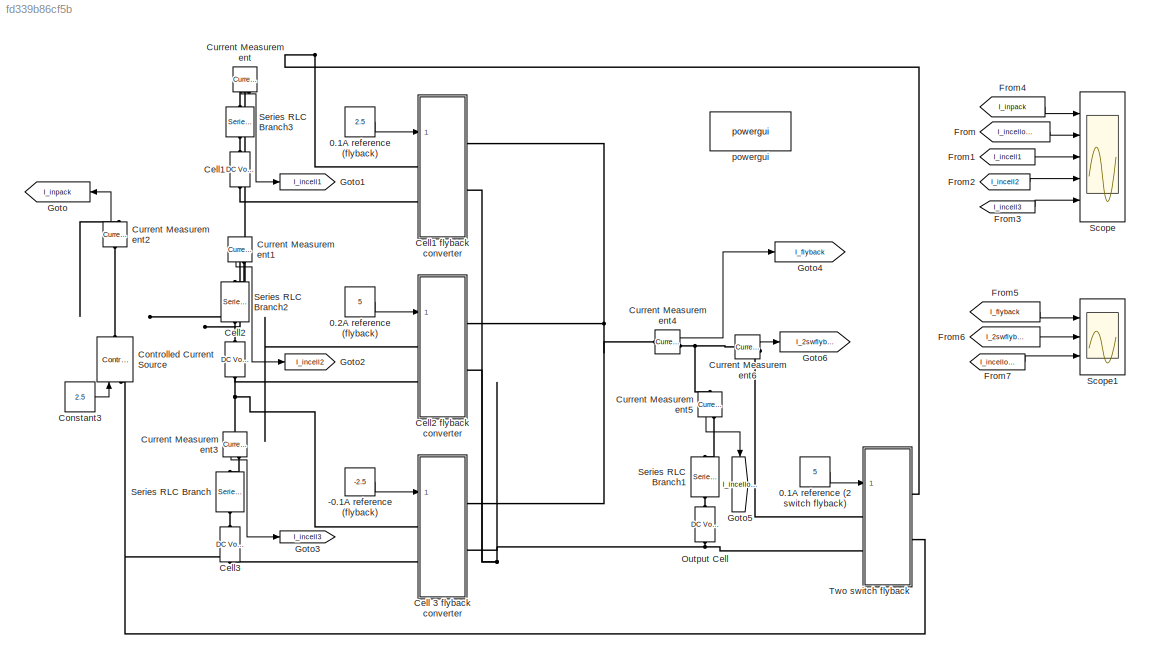
MODEL slx_fd339b86cf5b
KIND model
CONFIG AbsTol = auto
CONFIG EnableMultiTasking = off
CONFIG FixedStep = 5e-10
CONFIG MaxStep = auto
CONFIG MinStep = auto
CONFIG RelTol = 1e-3
CONFIG SampleTimeConstraint = Unconstrained
CONFIG SolverName = ode4
CONFIG StartTime = 0.0
CONFIG StopTime = 2e-3
BLOCK [Constant] -0.1A reference (flyback) 
  Value = -2.5
BLOCK [Constant] 0.1A reference (2 switch flyback)
  Value = 5
BLOCK [Constant] 0.1A reference (flyback)
  Value = 2.5
BLOCK [Constant] 0.2A reference (flyback)
  Value = 5
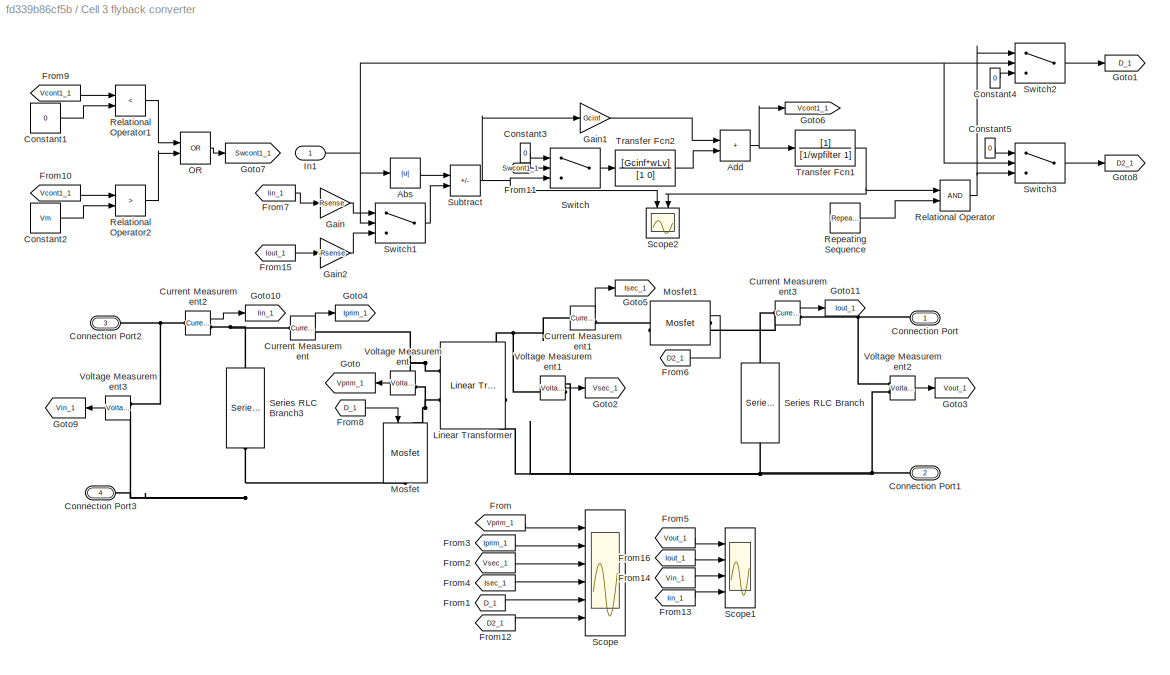
BLOCK [SubSystem] Cell 3 flyback converter
  Ports = [1, 0, 0, 0, 0, 2, 2]
  RequestExecContextInheritance = off
BLOCK [Abs] Cell 3 flyback converter/Abs
  SaturateOnIntegerOverflow = off
BLOCK [Sum] Cell 3 flyback converter/Add
  IconShape = rectangular
  Ports = [2, 1]
BLOCK [PMIOPort] Cell 3 flyback converter/Connection Port
  NameLocation = top
  Side = Right
BLOCK [PMIOPort] Cell 3 flyback converter/Connection Port1
  NameLocation = top
  Port = 2
  Side = Right
BLOCK [PMIOPort] Cell 3 flyback converter/Connection Port2
  Port = 3
  Side = Left
BLOCK [PMIOPort] Cell 3 flyback converter/Connection Port3
  Port = 4
  Side = Left
BLOCK [Constant] Cell 3 flyback converter/Constant1
  Value = 0
BLOCK [Constant] Cell 3 flyback converter/Constant2
  Value = Vm
BLOCK [Constant] Cell 3 flyback converter/Constant3
  Value = 0
BLOCK [Constant] Cell 3 flyback converter/Constant4
  Value = 0
BLOCK [Constant] Cell 3 flyback converter/Constant5
  Value = 0
BLOCK [Reference] Cell 3 flyback converter/Current Measurement  REF=spsCurrentMeasurementLib/Current Measurement
  Ports = [0, 1, 0, 0, 0, 1, 1]
  SourceBlock = spsCurrentMeasurementLib/Current Measurement
  SourceProductBaseCode = PS
  SourceType = Current Measurement
  UserDataPersistent = on
BLOCK [Reference] Cell 3 flyback converter/Current Measurement1  REF=spsCurrentMeasurementLib/Current Measurement
  Ports = [0, 1, 0, 0, 0, 1, 1]
  SourceBlock = spsCurrentMeasurementLib/Current Measurement
  SourceProductBaseCode = PS
  SourceType = Current Measurement
  UserDataPersistent = on
BLOCK [Reference] Cell 3 flyback converter/Current Measurement2  REF=spsCurrentMeasurementLib/Current Measurement
  Ports = [0, 1, 0, 0, 0, 1, 1]
  SourceBlock = spsCurrentMeasurementLib/Current Measurement
  SourceProductBaseCode = PS
  SourceType = Current Measurement
  UserDataPersistent = on
BLOCK [Reference] Cell 3 flyback converter/Current Measurement3  REF=spsCurrentMeasurementLib/Current Measurement
  Ports = [0, 1, 0, 0, 0, 1, 1]
  SourceBlock = spsCurrentMeasurementLib/Current Measurement
  SourceProductBaseCode = PS
  SourceType = Current Measurement
  UserDataPersistent = on
BLOCK [From] Cell 3 flyback converter/From
  GotoTag = Vprim_1
  NameLocation = top
BLOCK [From] Cell 3 flyback converter/From1
  GotoTag = D_1
  NameLocation = top
BLOCK [From] Cell 3 flyback converter/From10
  GotoTag = Vcont1_1
BLOCK [From] Cell 3 flyback converter/From11
  GotoTag = Swcont1_1
BLOCK [From] Cell 3 flyback converter/From12
  GotoTag = D2_1
BLOCK [From] Cell 3 flyback converter/From13
  GotoTag = Iin_1
BLOCK [From] Cell 3 flyback converter/From14
  GotoTag = Vin_1
  NameLocation = top
BLOCK [From] Cell 3 flyback converter/From15
  GotoTag = Iout_1
BLOCK [From] Cell 3 flyback converter/From16
  GotoTag = Iout_1
BLOCK [From] Cell 3 flyback converter/From2
  GotoTag = Vsec_1
BLOCK [From] Cell 3 flyback converter/From3
  GotoTag = Iprim_1
BLOCK [From] Cell 3 flyback converter/From4
  GotoTag = Isec_1
BLOCK [From] Cell 3 flyback converter/From5
  GotoTag = Vout_1
BLOCK [From] Cell 3 flyback converter/From6
  GotoTag = D2_1
  NameLocation = top
BLOCK [From] Cell 3 flyback converter/From7
  GotoTag = Iin_1
BLOCK [From] Cell 3 flyback converter/From8
  GotoTag = D_1
BLOCK [From] Cell 3 flyback converter/From9
  GotoTag = Vcont1_1
BLOCK [Gain] Cell 3 flyback converter/Gain
  Gain = Rsense
BLOCK [Gain] Cell 3 flyback converter/Gain1
  Gain = Gcinf
BLOCK [Gain] Cell 3 flyback converter/Gain2
  Gain = -Rsense
BLOCK [Goto] Cell 3 flyback converter/Goto
  GotoTag = Vprim_1
  NameLocation = top
BLOCK [Goto] Cell 3 flyback converter/Goto1
  GotoTag = D_1
BLOCK [Goto] Cell 3 flyback converter/Goto10
  GotoTag = Iin_1
BLOCK [Goto] Cell 3 flyback converter/Goto11
  GotoTag = Iout_1
BLOCK [Goto] Cell 3 flyback converter/Goto2
  GotoTag = Vsec_1
BLOCK [Goto] Cell 3 flyback converter/Goto3
  GotoTag = Vout_1
BLOCK [Goto] Cell 3 flyback converter/Goto4
  GotoTag = Iprim_1
BLOCK [Goto] Cell 3 flyback converter/Goto5
  GotoTag = Isec_1
BLOCK [Goto] Cell 3 flyback converter/Goto6
  GotoTag = Vcont1_1
BLOCK [Goto] Cell 3 flyback converter/Goto7
  GotoTag = Swcont1_1
BLOCK [Goto] Cell 3 flyback converter/Goto8
  GotoTag = D2_1
BLOCK [Goto] Cell 3 flyback converter/Goto9
  GotoTag = Vin_1
BLOCK [Inport] Cell 3 flyback converter/In1
BLOCK [Reference] Cell 3 flyback converter/Linear Transformer  REF=spsLinearTransformerLib/Linear Transformer
  Ports = [0, 0, 0, 0, 0, 2, 2]
  SourceBlock = spsLinearTransformerLib/Linear Transformer
  SourceProductBaseCode = PS
  SourceType = Linear Transformer
BLOCK [Reference] Cell 3 flyback converter/Mosfet  REF=spsMosfetLib/Mosfet
  NameLocation = left
  Ports = [1, 0, 0, 0, 0, 1, 1]
  SourceBlock = spsMosfetLib/Mosfet
  SourceProductBaseCode = PS
  SourceType = Mosfet
BLOCK [Reference] Cell 3 flyback converter/Mosfet1  REF=spsMosfetLib/Mosfet
  Ports = [1, 0, 0, 0, 0, 1, 1]
  SourceBlock = spsMosfetLib/Mosfet
  SourceProductBaseCode = PS
  SourceType = Mosfet
BLOCK [Logic] Cell 3 flyback converter/OR
  AllPortsSameDT = off
  IconShape = distinctive
  Operator = OR
  OutDataTypeStr = boolean
  Ports = [2, 1]
BLOCK [RelationalOperator] Cell 3 flyback converter/Relational Operator
  InputSameDT = off
  OutDataTypeStr = boolean
  Ports = [2, 1]
  RndMeth = Simplest
BLOCK [RelationalOperator] Cell 3 flyback converter/Relational Operator1
  InputSameDT = off
  Operator = <
  OutDataTypeStr = boolean
  Ports = [2, 1]
  RndMeth = Simplest
BLOCK [RelationalOperator] Cell 3 flyback converter/Relational Operator2
  InputSameDT = off
  Operator = >
  OutDataTypeStr = boolean
  Ports = [2, 1]
  RndMeth = Simplest
BLOCK [Reference] Cell 3 flyback converter/Repeating Sequence  REF=simulink/Sources/Repeating
Sequence
  Ports = [0, 1]
  SourceBlock = simulink/Sources/Repeating\nSequence
  SourceProductBaseCode = SL
  SourceType = Repeating table
BLOCK [Scope] Cell 3 flyback converter/Scope
  Floating = off
  NumInputPorts = 6
  Ports = [6]
  ScopeSpecificationString = Simulink.scopes.TimeScopeBlockCfg('CurrentConfiguration', extmgr.ConfigurationSet(extmgr.Configuration('Core','General UI',true),extmgr.Configuration('Core','Source UI',true),extmgr.Configuration('Sources','WiredSimulink',true,'DataLoggingVariableName','ScopeData1'),extmgr.Configuration('Visuals','Time Domain',true,'SerializedDisplays',{struct('MinYLimReal','-4.68594','MaxYLimReal','4.92895','YLab...<+6452ch>
BLOCK [Scope] Cell 3 flyback converter/Scope1
  Floating = off
  NumInputPorts = 4
  Ports = [4]
  ScopeSpecificationString = Simulink.scopes.TimeScopeBlockCfg('CurrentConfiguration', extmgr.ConfigurationSet(extmgr.Configuration('Core','General UI',true),extmgr.Configuration('Core','Source UI',true),extmgr.Configuration('Sources','WiredSimulink',true,'DataLoggingVariableName','ScopeData2'),extmgr.Configuration('Visuals','Time Domain',true,'SerializedDisplays',{struct('MinYLimReal','3.67749','MaxYLimReal','3.72978','YLabe...<+3683ch>
BLOCK [Scope] Cell 3 flyback converter/Scope2
  Floating = off
  NameLocation = left
  NumInputPorts = 2
  Ports = [2]
  ScopeSpecificationString = Simulink.scopes.TimeScopeBlockCfg('CurrentConfiguration', extmgr.ConfigurationSet(extmgr.Configuration('Core','General UI',true),extmgr.Configuration('Core','Source UI',true),extmgr.Configuration('Sources','WiredSimulink',true),extmgr.Configuration('Visuals','Time Domain',true,'SerializedDisplays',{struct('MinYLimReal','-6.32875','MaxYLimReal','3.77033','YLabelReal','','MinYLimMag','0.00000','MaxY...<+2166ch>
BLOCK [Reference] Cell 3 flyback converter/Series RLC Branch  REF=spsSeriesRLCBranchLib/Series RLC Branch
  NameLocation = left
  Ports = [0, 0, 0, 0, 0, 1, 1]
  SourceBlock = spsSeriesRLCBranchLib/Series RLC Branch
  SourceProductBaseCode = PS
  SourceType = Series RLC Branch
BLOCK [Reference] Cell 3 flyback converter/Series RLC Branch3  REF=spsSeriesRLCBranchLib/Series RLC Branch
  NameLocation = left
  Ports = [0, 0, 0, 0, 0, 1, 1]
  SourceBlock = spsSeriesRLCBranchLib/Series RLC Branch
  SourceProductBaseCode = PS
  SourceType = Series RLC Branch
BLOCK [Sum] Cell 3 flyback converter/Subtract
  IconShape = rectangular
  Inputs = +-
  Ports = [2, 1]
BLOCK [Switch] Cell 3 flyback converter/Switch
  Criteria = u2 > Threshold
  InputSameDT = off
  SaturateOnIntegerOverflow = off
BLOCK [Switch] Cell 3 flyback converter/Switch1
  Criteria = u2 > Threshold
  InputSameDT = off
  SaturateOnIntegerOverflow = off
BLOCK [Switch] Cell 3 flyback converter/Switch2
  Criteria = u2 > Threshold
  InputSameDT = off
  SaturateOnIntegerOverflow = off
BLOCK [Switch] Cell 3 flyback converter/Switch3
  Criteria = u2 > Threshold
  InputSameDT = off
  SaturateOnIntegerOverflow = off
BLOCK [TransferFcn] Cell 3 flyback converter/Transfer Fcn1
  Denominator = [1/wpfilter 1]
BLOCK [TransferFcn] Cell 3 flyback converter/Transfer Fcn2
  Denominator = [1 0]
  Numerator = [Gcinf*wLv]
BLOCK [Reference] Cell 3 flyback converter/Voltage Measurement  REF=spsVoltageMeasurementLib/Voltage Measurement
  Ports = [0, 1, 0, 0, 0, 2]
  SourceBlock = spsVoltageMeasurementLib/Voltage Measurement
  SourceProductBaseCode = PS
  SourceType = Voltage Measurement
  UserDataPersistent = on
BLOCK [Reference] Cell 3 flyback converter/Voltage Measurement1  REF=spsVoltageMeasurementLib/Voltage Measurement
  NameLocation = top
  Ports = [0, 1, 0, 0, 0, 2]
  SourceBlock = spsVoltageMeasurementLib/Voltage Measurement
  SourceProductBaseCode = PS
  SourceType = Voltage Measurement
  UserDataPersistent = on
BLOCK [Reference] Cell 3 flyback converter/Voltage Measurement2  REF=spsVoltageMeasurementLib/Voltage Measurement
  Ports = [0, 1, 0, 0, 0, 2]
  SourceBlock = spsVoltageMeasurementLib/Voltage Measurement
  SourceProductBaseCode = PS
  SourceType = Voltage Measurement
  UserDataPersistent = on
BLOCK [Reference] Cell 3 flyback converter/Voltage Measurement3  REF=spsVoltageMeasurementLib/Voltage Measurement
  Ports = [0, 1, 0, 0, 0, 2]
  SourceBlock = spsVoltageMeasurementLib/Voltage Measurement
  SourceProductBaseCode = PS
  SourceType = Voltage Measurement
  UserDataPersistent = on
BLOCK [Reference] Cell1  REF=spsDCVoltageSourceLib/DC Voltage Source
  NameLocation = left
  Ports = [0, 0, 0, 0, 0, 1, 1]
  SourceBlock = spsDCVoltageSourceLib/DC Voltage Source
  SourceProductBaseCode = PS
  SourceType = DC Voltage Source
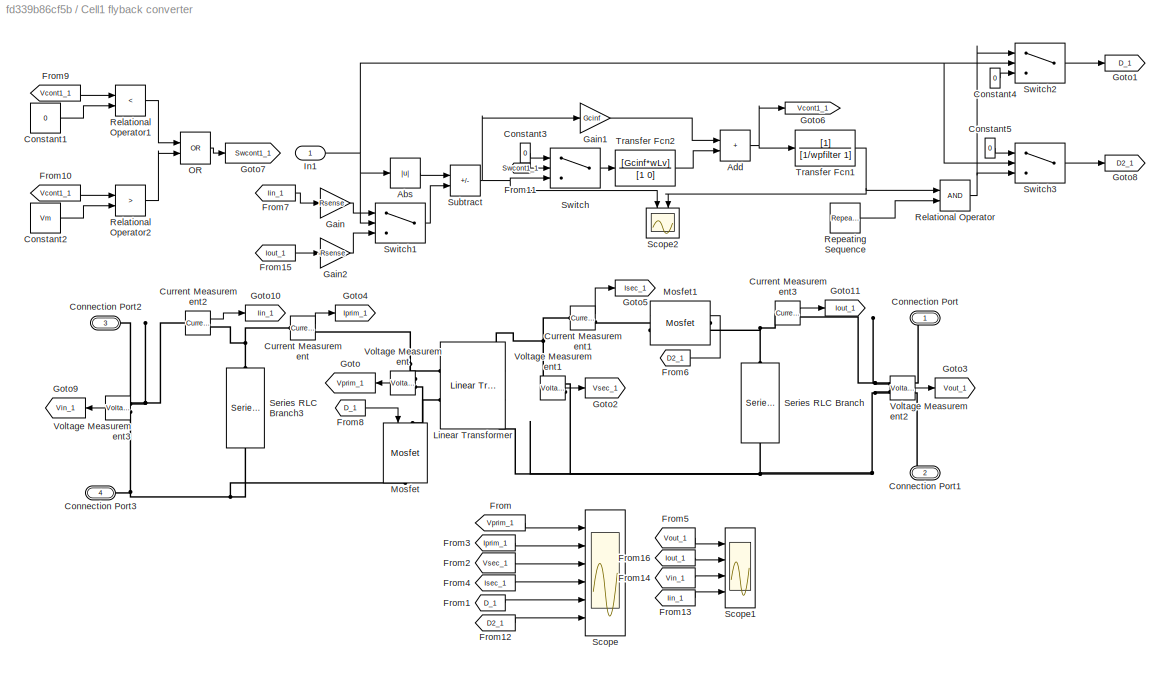
BLOCK [SubSystem] Cell1 flyback converter
  Ports = [1, 0, 0, 0, 0, 2, 2]
  RequestExecContextInheritance = off
BLOCK [Abs] Cell1 flyback converter/Abs
  SaturateOnIntegerOverflow = off
BLOCK [Sum] Cell1 flyback converter/Add
  IconShape = rectangular
  Ports = [2, 1]
BLOCK [PMIOPort] Cell1 flyback converter/Connection Port
  NameLocation = top
  Side = Right
BLOCK [PMIOPort] Cell1 flyback converter/Connection Port1
  NameLocation = top
  Port = 2
  Side = Right
BLOCK [PMIOPort] Cell1 flyback converter/Connection Port2
  Port = 3
  Side = Left
BLOCK [PMIOPort] Cell1 flyback converter/Connection Port3
  Port = 4
  Side = Left
BLOCK [Constant] Cell1 flyback converter/Constant1
  Value = 0
BLOCK [Constant] Cell1 flyback converter/Constant2
  Value = Vm
BLOCK [Constant] Cell1 flyback converter/Constant3
  Value = 0
BLOCK [Constant] Cell1 flyback converter/Constant4
  Value = 0
BLOCK [Constant] Cell1 flyback converter/Constant5
  Value = 0
BLOCK [Reference] Cell1 flyback converter/Current Measurement  REF=spsCurrentMeasurementLib/Current Measurement
  Ports = [0, 1, 0, 0, 0, 1, 1]
  SourceBlock = spsCurrentMeasurementLib/Current Measurement
  SourceProductBaseCode = PS
  SourceType = Current Measurement
  UserDataPersistent = on
BLOCK [Reference] Cell1 flyback converter/Current Measurement1  REF=spsCurrentMeasurementLib/Current Measurement
  Ports = [0, 1, 0, 0, 0, 1, 1]
  SourceBlock = spsCurrentMeasurementLib/Current Measurement
  SourceProductBaseCode = PS
  SourceType = Current Measurement
  UserDataPersistent = on
BLOCK [Reference] Cell1 flyback converter/Current Measurement2  REF=spsCurrentMeasurementLib/Current Measurement
  Ports = [0, 1, 0, 0, 0, 1, 1]
  SourceBlock = spsCurrentMeasurementLib/Current Measurement
  SourceProductBaseCode = PS
  SourceType = Current Measurement
  UserDataPersistent = on
BLOCK [Reference] Cell1 flyback converter/Current Measurement3  REF=spsCurrentMeasurementLib/Current Measurement
  Ports = [0, 1, 0, 0, 0, 1, 1]
  SourceBlock = spsCurrentMeasurementLib/Current Measurement
  SourceProductBaseCode = PS
  SourceType = Current Measurement
  UserDataPersistent = on
BLOCK [From] Cell1 flyback converter/From
  GotoTag = Vprim_1
  NameLocation = top
BLOCK [From] Cell1 flyback converter/From1
  GotoTag = D_1
  NameLocation = top
BLOCK [From] Cell1 flyback converter/From10
  GotoTag = Vcont1_1
BLOCK [From] Cell1 flyback converter/From11
  GotoTag = Swcont1_1
BLOCK [From] Cell1 flyback converter/From12
  GotoTag = D2_1
BLOCK [From] Cell1 flyback converter/From13
  GotoTag = Iin_1
BLOCK [From] Cell1 flyback converter/From14
  GotoTag = Vin_1
  NameLocation = top
BLOCK [From] Cell1 flyback converter/From15
  GotoTag = Iout_1
BLOCK [From] Cell1 flyback converter/From16
  GotoTag = Iout_1
BLOCK [From] Cell1 flyback converter/From2
  GotoTag = Vsec_1
BLOCK [From] Cell1 flyback converter/From3
  GotoTag = Iprim_1
BLOCK [From] Cell1 flyback converter/From4
  GotoTag = Isec_1
BLOCK [From] Cell1 flyback converter/From5
  GotoTag = Vout_1
BLOCK [From] Cell1 flyback converter/From6
  GotoTag = D2_1
  NameLocation = top
BLOCK [From] Cell1 flyback converter/From7
  GotoTag = Iin_1
BLOCK [From] Cell1 flyback converter/From8
  GotoTag = D_1
BLOCK [From] Cell1 flyback converter/From9
  GotoTag = Vcont1_1
BLOCK [Gain] Cell1 flyback converter/Gain
  Gain = Rsense
BLOCK [Gain] Cell1 flyback converter/Gain1
  Gain = Gcinf
BLOCK [Gain] Cell1 flyback converter/Gain2
  Gain = -Rsense
BLOCK [Goto] Cell1 flyback converter/Goto
  GotoTag = Vprim_1
  NameLocation = top
BLOCK [Goto] Cell1 flyback converter/Goto1
  GotoTag = D_1
BLOCK [Goto] Cell1 flyback converter/Goto10
  GotoTag = Iin_1
BLOCK [Goto] Cell1 flyback converter/Goto11
  GotoTag = Iout_1
BLOCK [Goto] Cell1 flyback converter/Goto2
  GotoTag = Vsec_1
BLOCK [Goto] Cell1 flyback converter/Goto3
  GotoTag = Vout_1
BLOCK [Goto] Cell1 flyback converter/Goto4
  GotoTag = Iprim_1
BLOCK [Goto] Cell1 flyback converter/Goto5
  GotoTag = Isec_1
BLOCK [Goto] Cell1 flyback converter/Goto6
  GotoTag = Vcont1_1
BLOCK [Goto] Cell1 flyback converter/Goto7
  GotoTag = Swcont1_1
BLOCK [Goto] Cell1 flyback converter/Goto8
  GotoTag = D2_1
BLOCK [Goto] Cell1 flyback converter/Goto9
  GotoTag = Vin_1
BLOCK [Inport] Cell1 flyback converter/In1
BLOCK [Reference] Cell1 flyback converter/Linear Transformer  REF=spsLinearTransformerLib/Linear Transformer
  Ports = [0, 0, 0, 0, 0, 2, 2]
  SourceBlock = spsLinearTransformerLib/Linear Transformer
  SourceProductBaseCode = PS
  SourceType = Linear Transformer
BLOCK [Reference] Cell1 flyback converter/Mosfet  REF=spsMosfetLib/Mosfet
  NameLocation = left
  Ports = [1, 0, 0, 0, 0, 1, 1]
  SourceBlock = spsMosfetLib/Mosfet
  SourceProductBaseCode = PS
  SourceType = Mosfet
BLOCK [Reference] Cell1 flyback converter/Mosfet1  REF=spsMosfetLib/Mosfet
  Ports = [1, 0, 0, 0, 0, 1, 1]
  SourceBlock = spsMosfetLib/Mosfet
  SourceProductBaseCode = PS
  SourceType = Mosfet
BLOCK [Logic] Cell1 flyback converter/OR
  AllPortsSameDT = off
  IconShape = distinctive
  Operator = OR
  OutDataTypeStr = boolean
  Ports = [2, 1]
BLOCK [RelationalOperator] Cell1 flyback converter/Relational Operator
  InputSameDT = off
  OutDataTypeStr = boolean
  Ports = [2, 1]
  RndMeth = Simplest
BLOCK [RelationalOperator] Cell1 flyback converter/Relational Operator1
  InputSameDT = off
  Operator = <
  OutDataTypeStr = boolean
  Ports = [2, 1]
  RndMeth = Simplest
BLOCK [RelationalOperator] Cell1 flyback converter/Relational Operator2
  InputSameDT = off
  Operator = >
  OutDataTypeStr = boolean
  Ports = [2, 1]
  RndMeth = Simplest
BLOCK [Reference] Cell1 flyback converter/Repeating Sequence  REF=simulink/Sources/Repeating
Sequence
  Ports = [0, 1]
  SourceBlock = simulink/Sources/Repeating\nSequence
  SourceProductBaseCode = SL
  SourceType = Repeating table
BLOCK [Scope] Cell1 flyback converter/Scope
  Floating = off
  NumInputPorts = 6
  Ports = [6]
  ScopeSpecificationString = Simulink.scopes.TimeScopeBlockCfg('CurrentConfiguration', extmgr.ConfigurationSet(extmgr.Configuration('Core','General UI',true),extmgr.Configuration('Core','Source UI',true),extmgr.Configuration('Sources','WiredSimulink',true,'DataLoggingVariableName','ScopeData1'),extmgr.Configuration('Visuals','Time Domain',true,'SerializedDisplays',{struct('MinYLimReal','-4.70297','MaxYLimReal','4.91144','YLab...<+6452ch>
BLOCK [Scope] Cell1 flyback converter/Scope1
  Floating = off
  NumInputPorts = 4
  Ports = [4]
  ScopeSpecificationString = Simulink.scopes.TimeScopeBlockCfg('CurrentConfiguration', extmgr.ConfigurationSet(extmgr.Configuration('Core','General UI',true),extmgr.Configuration('Core','Source UI',true),extmgr.Configuration('Sources','WiredSimulink',true,'DataLoggingVariableName','ScopeData2'),extmgr.Configuration('Visuals','Time Domain',true,'SerializedDisplays',{struct('MinYLimReal','3.67751','MaxYLimReal','3.72962','YLabe...<+3711ch>
BLOCK [Scope] Cell1 flyback converter/Scope2
  Floating = off
  NameLocation = left
  NumInputPorts = 2
  Ports = [2]
  ScopeSpecificationString = Simulink.scopes.TimeScopeBlockCfg('CurrentConfiguration', extmgr.ConfigurationSet(extmgr.Configuration('Core','General UI',true),extmgr.Configuration('Core','Source UI',true),extmgr.Configuration('Sources','WiredSimulink',true),extmgr.Configuration('Visuals','Time Domain',true,'SerializedDisplays',{struct('MinYLimReal','-2.39387','MaxYLimReal','3.07102','YLabelReal','','MinYLimMag','0.00000','MaxY...<+2166ch>
BLOCK [Reference] Cell1 flyback converter/Series RLC Branch  REF=spsSeriesRLCBranchLib/Series RLC Branch
  NameLocation = left
  Ports = [0, 0, 0, 0, 0, 1, 1]
  SourceBlock = spsSeriesRLCBranchLib/Series RLC Branch
  SourceProductBaseCode = PS
  SourceType = Series RLC Branch
BLOCK [Reference] Cell1 flyback converter/Series RLC Branch3  REF=spsSeriesRLCBranchLib/Series RLC Branch
  NameLocation = left
  Ports = [0, 0, 0, 0, 0, 1, 1]
  SourceBlock = spsSeriesRLCBranchLib/Series RLC Branch
  SourceProductBaseCode = PS
  SourceType = Series RLC Branch
BLOCK [Sum] Cell1 flyback converter/Subtract
  IconShape = rectangular
  Inputs = +-
  Ports = [2, 1]
BLOCK [Switch] Cell1 flyback converter/Switch
  Criteria = u2 > Threshold
  InputSameDT = off
  SaturateOnIntegerOverflow = off
BLOCK [Switch] Cell1 flyback converter/Switch1
  Criteria = u2 > Threshold
  InputSameDT = off
  SaturateOnIntegerOverflow = off
BLOCK [Switch] Cell1 flyback converter/Switch2
  Criteria = u2 > Threshold
  InputSameDT = off
  SaturateOnIntegerOverflow = off
BLOCK [Switch] Cell1 flyback converter/Switch3
  Criteria = u2 > Threshold
  InputSameDT = off
  SaturateOnIntegerOverflow = off
BLOCK [TransferFcn] Cell1 flyback converter/Transfer Fcn1
  Denominator = [1/wpfilter 1]
BLOCK [TransferFcn] Cell1 flyback converter/Transfer Fcn2
  Denominator = [1 0]
  Numerator = [Gcinf*wLv]
BLOCK [Reference] Cell1 flyback converter/Voltage Measurement  REF=spsVoltageMeasurementLib/Voltage Measurement
  Ports = [0, 1, 0, 0, 0, 2]
  SourceBlock = spsVoltageMeasurementLib/Voltage Measurement
  SourceProductBaseCode = PS
  SourceType = Voltage Measurement
  UserDataPersistent = on
BLOCK [Reference] Cell1 flyback converter/Voltage Measurement1  REF=spsVoltageMeasurementLib/Voltage Measurement
  NameLocation = top
  Ports = [0, 1, 0, 0, 0, 2]
  SourceBlock = spsVoltageMeasurementLib/Voltage Measurement
  SourceProductBaseCode = PS
  SourceType = Voltage Measurement
  UserDataPersistent = on
BLOCK [Reference] Cell1 flyback converter/Voltage Measurement2  REF=spsVoltageMeasurementLib/Voltage Measurement
  Ports = [0, 1, 0, 0, 0, 2]
  SourceBlock = spsVoltageMeasurementLib/Voltage Measurement
  SourceProductBaseCode = PS
  SourceType = Voltage Measurement
  UserDataPersistent = on
BLOCK [Reference] Cell1 flyback converter/Voltage Measurement3  REF=spsVoltageMeasurementLib/Voltage Measurement
  Ports = [0, 1, 0, 0, 0, 2]
  SourceBlock = spsVoltageMeasurementLib/Voltage Measurement
  SourceProductBaseCode = PS
  SourceType = Voltage Measurement
  UserDataPersistent = on
BLOCK [Reference] Cell2  REF=spsDCVoltageSourceLib/DC Voltage Source
  NameLocation = left
  Ports = [0, 0, 0, 0, 0, 1, 1]
  SourceBlock = spsDCVoltageSourceLib/DC Voltage Source
  SourceProductBaseCode = PS
  SourceType = DC Voltage Source
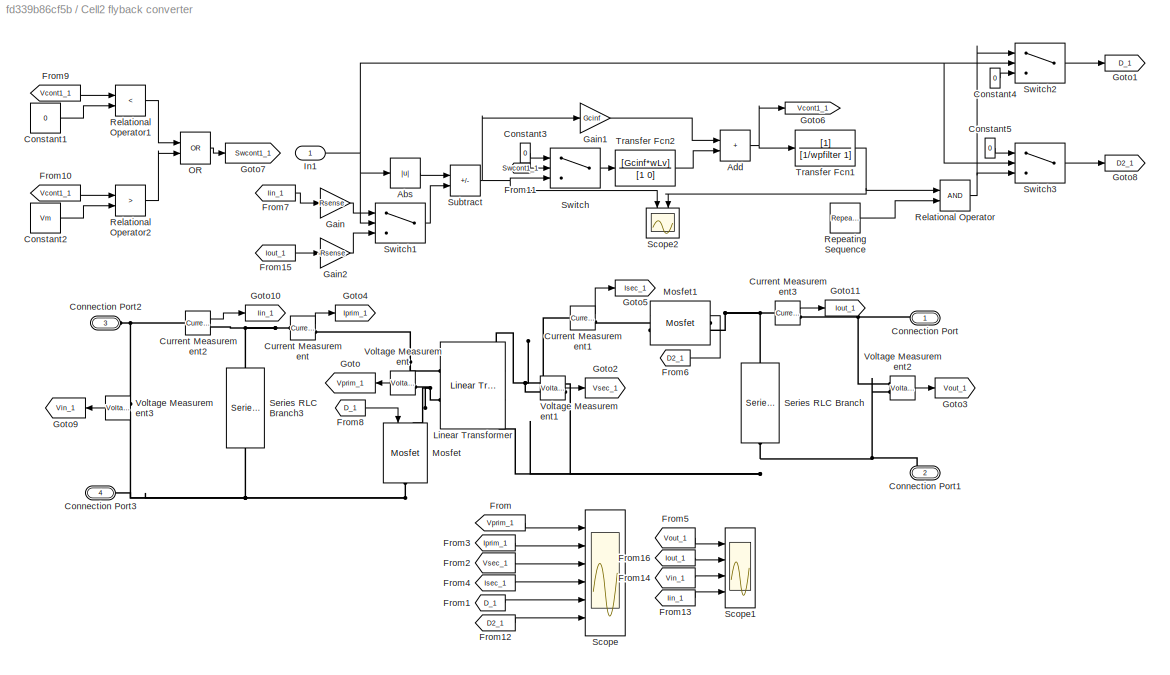
BLOCK [SubSystem] Cell2 flyback converter
  Ports = [1, 0, 0, 0, 0, 2, 2]
  RequestExecContextInheritance = off
BLOCK [Abs] Cell2 flyback converter/Abs
  SaturateOnIntegerOverflow = off
BLOCK [Sum] Cell2 flyback converter/Add
  IconShape = rectangular
  Ports = [2, 1]
BLOCK [PMIOPort] Cell2 flyback converter/Connection Port
  NameLocation = top
  Side = Right
BLOCK [PMIOPort] Cell2 flyback converter/Connection Port1
  NameLocation = top
  Port = 2
  Side = Right
BLOCK [PMIOPort] Cell2 flyback converter/Connection Port2
  Port = 3
  Side = Left
BLOCK [PMIOPort] Cell2 flyback converter/Connection Port3
  Port = 4
  Side = Left
BLOCK [Constant] Cell2 flyback converter/Constant1
  Value = 0
BLOCK [Constant] Cell2 flyback converter/Constant2
  Value = Vm
BLOCK [Constant] Cell2 flyback converter/Constant3
  Value = 0
BLOCK [Constant] Cell2 flyback converter/Constant4
  Value = 0
BLOCK [Constant] Cell2 flyback converter/Constant5
  Value = 0
BLOCK [Reference] Cell2 flyback converter/Current Measurement  REF=spsCurrentMeasurementLib/Current Measurement
  Ports = [0, 1, 0, 0, 0, 1, 1]
  SourceBlock = spsCurrentMeasurementLib/Current Measurement
  SourceProductBaseCode = PS
  SourceType = Current Measurement
  UserDataPersistent = on
BLOCK [Reference] Cell2 flyback converter/Current Measurement1  REF=spsCurrentMeasurementLib/Current Measurement
  Ports = [0, 1, 0, 0, 0, 1, 1]
  SourceBlock = spsCurrentMeasurementLib/Current Measurement
  SourceProductBaseCode = PS
  SourceType = Current Measurement
  UserDataPersistent = on
BLOCK [Reference] Cell2 flyback converter/Current Measurement2  REF=spsCurrentMeasurementLib/Current Measurement
  Ports = [0, 1, 0, 0, 0, 1, 1]
  SourceBlock = spsCurrentMeasurementLib/Current Measurement
  SourceProductBaseCode = PS
  SourceType = Current Measurement
  UserDataPersistent = on
BLOCK [Reference] Cell2 flyback converter/Current Measurement3  REF=spsCurrentMeasurementLib/Current Measurement
  Ports = [0, 1, 0, 0, 0, 1, 1]
  SourceBlock = spsCurrentMeasurementLib/Current Measurement
  SourceProductBaseCode = PS
  SourceType = Current Measurement
  UserDataPersistent = on
BLOCK [From] Cell2 flyback converter/From
  GotoTag = Vprim_1
  NameLocation = top
BLOCK [From] Cell2 flyback converter/From1
  GotoTag = D_1
  NameLocation = top
BLOCK [From] Cell2 flyback converter/From10
  GotoTag = Vcont1_1
BLOCK [From] Cell2 flyback converter/From11
  GotoTag = Swcont1_1
BLOCK [From] Cell2 flyback converter/From12
  GotoTag = D2_1
BLOCK [From] Cell2 flyback converter/From13
  GotoTag = Iin_1
BLOCK [From] Cell2 flyback converter/From14
  GotoTag = Vin_1
  NameLocation = top
BLOCK [From] Cell2 flyback converter/From15
  GotoTag = Iout_1
BLOCK [From] Cell2 flyback converter/From16
  GotoTag = Iout_1
BLOCK [From] Cell2 flyback converter/From2
  GotoTag = Vsec_1
BLOCK [From] Cell2 flyback converter/From3
  GotoTag = Iprim_1
BLOCK [From] Cell2 flyback converter/From4
  GotoTag = Isec_1
BLOCK [From] Cell2 flyback converter/From5
  GotoTag = Vout_1
BLOCK [From] Cell2 flyback converter/From6
  GotoTag = D2_1
  NameLocation = top
BLOCK [From] Cell2 flyback converter/From7
  GotoTag = Iin_1
BLOCK [From] Cell2 flyback converter/From8
  GotoTag = D_1
BLOCK [From] Cell2 flyback converter/From9
  GotoTag = Vcont1_1
BLOCK [Gain] Cell2 flyback converter/Gain
  Gain = Rsense
BLOCK [Gain] Cell2 flyback converter/Gain1
  Gain = Gcinf
BLOCK [Gain] Cell2 flyback converter/Gain2
  Gain = -Rsense
BLOCK [Goto] Cell2 flyback converter/Goto
  GotoTag = Vprim_1
  NameLocation = top
BLOCK [Goto] Cell2 flyback converter/Goto1
  GotoTag = D_1
BLOCK [Goto] Cell2 flyback converter/Goto10
  GotoTag = Iin_1
BLOCK [Goto] Cell2 flyback converter/Goto11
  GotoTag = Iout_1
BLOCK [Goto] Cell2 flyback converter/Goto2
  GotoTag = Vsec_1
BLOCK [Goto] Cell2 flyback converter/Goto3
  GotoTag = Vout_1
BLOCK [Goto] Cell2 flyback converter/Goto4
  GotoTag = Iprim_1
BLOCK [Goto] Cell2 flyback converter/Goto5
  GotoTag = Isec_1
BLOCK [Goto] Cell2 flyback converter/Goto6
  GotoTag = Vcont1_1
BLOCK [Goto] Cell2 flyback converter/Goto7
  GotoTag = Swcont1_1
BLOCK [Goto] Cell2 flyback converter/Goto8
  GotoTag = D2_1
BLOCK [Goto] Cell2 flyback converter/Goto9
  GotoTag = Vin_1
BLOCK [Inport] Cell2 flyback converter/In1
BLOCK [Reference] Cell2 flyback converter/Linear Transformer  REF=spsLinearTransformerLib/Linear Transformer
  Ports = [0, 0, 0, 0, 0, 2, 2]
  SourceBlock = spsLinearTransformerLib/Linear Transformer
  SourceProductBaseCode = PS
  SourceType = Linear Transformer
BLOCK [Reference] Cell2 flyback converter/Mosfet  REF=spsMosfetLib/Mosfet
  NameLocation = left
  Ports = [1, 0, 0, 0, 0, 1, 1]
  SourceBlock = spsMosfetLib/Mosfet
  SourceProductBaseCode = PS
  SourceType = Mosfet
BLOCK [Reference] Cell2 flyback converter/Mosfet1  REF=spsMosfetLib/Mosfet
  Ports = [1, 0, 0, 0, 0, 1, 1]
  SourceBlock = spsMosfetLib/Mosfet
  SourceProductBaseCode = PS
  SourceType = Mosfet
BLOCK [Logic] Cell2 flyback converter/OR
  AllPortsSameDT = off
  IconShape = distinctive
  Operator = OR
  OutDataTypeStr = boolean
  Ports = [2, 1]
BLOCK [RelationalOperator] Cell2 flyback converter/Relational Operator
  InputSameDT = off
  OutDataTypeStr = boolean
  Ports = [2, 1]
  RndMeth = Simplest
BLOCK [RelationalOperator] Cell2 flyback converter/Relational Operator1
  InputSameDT = off
  Operator = <
  OutDataTypeStr = boolean
  Ports = [2, 1]
  RndMeth = Simplest
BLOCK [RelationalOperator] Cell2 flyback converter/Relational Operator2
  InputSameDT = off
  Operator = >
  OutDataTypeStr = boolean
  Ports = [2, 1]
  RndMeth = Simplest
BLOCK [Reference] Cell2 flyback converter/Repeating Sequence  REF=simulink/Sources/Repeating
Sequence
  Ports = [0, 1]
  SourceBlock = simulink/Sources/Repeating\nSequence
  SourceProductBaseCode = SL
  SourceType = Repeating table
BLOCK [Scope] Cell2 flyback converter/Scope
  Floating = off
  NumInputPorts = 6
  Ports = [6]
  ScopeSpecificationString = Simulink.scopes.TimeScopeBlockCfg('CurrentConfiguration', extmgr.ConfigurationSet(extmgr.Configuration('Core','General UI',true),extmgr.Configuration('Core','Source UI',true),extmgr.Configuration('Sources','WiredSimulink',true,'DataLoggingVariableName','ScopeData1'),extmgr.Configuration('Visuals','Time Domain',true,'SerializedDisplays',{struct('MinYLimReal','-4.7032','MaxYLimReal','4.91147','YLabe...<+6451ch>
BLOCK [Scope] Cell2 flyback converter/Scope1
  Floating = off
  NumInputPorts = 4
  Ports = [4]
  ScopeSpecificationString = Simulink.scopes.TimeScopeBlockCfg('CurrentConfiguration', extmgr.ConfigurationSet(extmgr.Configuration('Core','General UI',true),extmgr.Configuration('Core','Source UI',true),extmgr.Configuration('Sources','WiredSimulink',true,'DataLoggingVariableName','ScopeData2'),extmgr.Configuration('Visuals','Time Domain',true,'SerializedDisplays',{struct('MinYLimReal','3.68057','MaxYLimReal','3.74808','YLabe...<+3708ch>
BLOCK [Scope] Cell2 flyback converter/Scope2
  Floating = off
  NameLocation = left
  NumInputPorts = 2
  Ports = [2]
  ScopeSpecificationString = Simulink.scopes.TimeScopeBlockCfg('CurrentConfiguration', extmgr.ConfigurationSet(extmgr.Configuration('Core','General UI',true),extmgr.Configuration('Core','Source UI',true),extmgr.Configuration('Sources','WiredSimulink',true),extmgr.Configuration('Visuals','Time Domain',true,'SerializedDisplays',{struct('MinYLimReal','-4.74142','MaxYLimReal','6.08239','YLabelReal','','MinYLimMag','0.00000','MaxY...<+2165ch>
BLOCK [Reference] Cell2 flyback converter/Series RLC Branch  REF=spsSeriesRLCBranchLib/Series RLC Branch
  NameLocation = left
  Ports = [0, 0, 0, 0, 0, 1, 1]
  SourceBlock = spsSeriesRLCBranchLib/Series RLC Branch
  SourceProductBaseCode = PS
  SourceType = Series RLC Branch
BLOCK [Reference] Cell2 flyback converter/Series RLC Branch3  REF=spsSeriesRLCBranchLib/Series RLC Branch
  NameLocation = left
  Ports = [0, 0, 0, 0, 0, 1, 1]
  SourceBlock = spsSeriesRLCBranchLib/Series RLC Branch
  SourceProductBaseCode = PS
  SourceType = Series RLC Branch
BLOCK [Sum] Cell2 flyback converter/Subtract
  IconShape = rectangular
  Inputs = +-
  Ports = [2, 1]
BLOCK [Switch] Cell2 flyback converter/Switch
  Criteria = u2 > Threshold
  InputSameDT = off
  SaturateOnIntegerOverflow = off
BLOCK [Switch] Cell2 flyback converter/Switch1
  Criteria = u2 > Threshold
  InputSameDT = off
  SaturateOnIntegerOverflow = off
BLOCK [Switch] Cell2 flyback converter/Switch2
  Criteria = u2 > Threshold
  InputSameDT = off
  SaturateOnIntegerOverflow = off
BLOCK [Switch] Cell2 flyback converter/Switch3
  Criteria = u2 > Threshold
  InputSameDT = off
  SaturateOnIntegerOverflow = off
BLOCK [TransferFcn] Cell2 flyback converter/Transfer Fcn1
  Denominator = [1/wpfilter 1]
BLOCK [TransferFcn] Cell2 flyback converter/Transfer Fcn2
  Denominator = [1 0]
  Numerator = [Gcinf*wLv]
BLOCK [Reference] Cell2 flyback converter/Voltage Measurement  REF=spsVoltageMeasurementLib/Voltage Measurement
  Ports = [0, 1, 0, 0, 0, 2]
  SourceBlock = spsVoltageMeasurementLib/Voltage Measurement
  SourceProductBaseCode = PS
  SourceType = Voltage Measurement
  UserDataPersistent = on
BLOCK [Reference] Cell2 flyback converter/Voltage Measurement1  REF=spsVoltageMeasurementLib/Voltage Measurement
  NameLocation = top
  Ports = [0, 1, 0, 0, 0, 2]
  SourceBlock = spsVoltageMeasurementLib/Voltage Measurement
  SourceProductBaseCode = PS
  SourceType = Voltage Measurement
  UserDataPersistent = on
BLOCK [Reference] Cell2 flyback converter/Voltage Measurement2  REF=spsVoltageMeasurementLib/Voltage Measurement
  Ports = [0, 1, 0, 0, 0, 2]
  SourceBlock = spsVoltageMeasurementLib/Voltage Measurement
  SourceProductBaseCode = PS
  SourceType = Voltage Measurement
  UserDataPersistent = on
BLOCK [Reference] Cell2 flyback converter/Voltage Measurement3  REF=spsVoltageMeasurementLib/Voltage Measurement
  Ports = [0, 1, 0, 0, 0, 2]
  SourceBlock = spsVoltageMeasurementLib/Voltage Measurement
  SourceProductBaseCode = PS
  SourceType = Voltage Measurement
  UserDataPersistent = on
BLOCK [Reference] Cell3  REF=spsDCVoltageSourceLib/DC Voltage Source
  NameLocation = left
  Ports = [0, 0, 0, 0, 0, 1, 1]
  SourceBlock = spsDCVoltageSourceLib/DC Voltage Source
  SourceProductBaseCode = PS
  SourceType = DC Voltage Source
BLOCK [Constant] Constant3
  Value = 2.5
BLOCK [Reference] Controlled Current Source  REF=spsControlledCurrentSourceLib/Controlled Current Source
  Ports = [1, 0, 0, 0, 0, 1, 1]
  SourceBlock = spsControlledCurrentSourceLib/Controlled Current Source
  SourceProductBaseCode = PS
  SourceType = Controlled Current Source
BLOCK [Reference] Current Measurement  REF=spsCurrentMeasurementLib/Current Measurement
  NameLocation = left
  Ports = [0, 1, 0, 0, 0, 1, 1]
  SourceBlock = spsCurrentMeasurementLib/Current Measurement
  SourceProductBaseCode = PS
  SourceType = Current Measurement
  UserDataPersistent = on
BLOCK [Reference] Current Measurement1  REF=spsCurrentMeasurementLib/Current Measurement
  NameLocation = left
  Ports = [0, 1, 0, 0, 0, 1, 1]
  SourceBlock = spsCurrentMeasurementLib/Current Measurement
  SourceProductBaseCode = PS
  SourceType = Current Measurement
  UserDataPersistent = on
BLOCK [Reference] Current Measurement2  REF=spsCurrentMeasurementLib/Current Measurement
  NameLocation = right
  Ports = [0, 1, 0, 0, 0, 1, 1]
  SourceBlock = spsCurrentMeasurementLib/Current Measurement
  SourceProductBaseCode = PS
  SourceType = Current Measurement
  UserDataPersistent = on
BLOCK [Reference] Current Measurement3  REF=spsCurrentMeasurementLib/Current Measurement
  NameLocation = left
  Ports = [0, 1, 0, 0, 0, 1, 1]
  SourceBlock = spsCurrentMeasurementLib/Current Measurement
  SourceProductBaseCode = PS
  SourceType = Current Measurement
  UserDataPersistent = on
BLOCK [Reference] Current Measurement4  REF=spsCurrentMeasurementLib/Current Measurement
  Ports = [0, 1, 0, 0, 0, 1, 1]
  SourceBlock = spsCurrentMeasurementLib/Current Measurement
  SourceProductBaseCode = PS
  SourceType = Current Measurement
  UserDataPersistent = on
BLOCK [Reference] Current Measurement5  REF=spsCurrentMeasurementLib/Current Measurement
  NameLocation = left
  Ports = [0, 1, 0, 0, 0, 1, 1]
  SourceBlock = spsCurrentMeasurementLib/Current Measurement
  SourceProductBaseCode = PS
  SourceType = Current Measurement
  UserDataPersistent = on
BLOCK [Reference] Current Measurement6  REF=spsCurrentMeasurementLib/Current Measurement
  Ports = [0, 1, 0, 0, 0, 1, 1]
  SourceBlock = spsCurrentMeasurementLib/Current Measurement
  SourceProductBaseCode = PS
  SourceType = Current Measurement
  UserDataPersistent = on
BLOCK [From] From
  GotoTag = I_incellout
BLOCK [From] From1
  GotoTag = I_incell1
  NameLocation = top
BLOCK [From] From2
  GotoTag = I_incell2
  NameLocation = top
BLOCK [From] From3
  GotoTag = I_incell3
  NameLocation = top
BLOCK [From] From4
  GotoTag = I_inpack
  NameLocation = top
BLOCK [From] From5
  GotoTag = I_flyback
BLOCK [From] From6
  GotoTag = I_2swflyback
BLOCK [From] From7
  GotoTag = I_incellout
BLOCK [Goto] Goto
  GotoTag = I_inpack
  NameLocation = top
BLOCK [Goto] Goto1
  GotoTag = I_incell1
BLOCK [Goto] Goto2
  GotoTag = I_incell2
BLOCK [Goto] Goto3
  GotoTag = I_incell3
BLOCK [Goto] Goto4
  GotoTag = I_flyback
BLOCK [Goto] Goto5
  GotoTag = I_incellout
  NameLocation = left
BLOCK [Goto] Goto6
  GotoTag = I_2swflyback
BLOCK [Reference] Output Cell  REF=spsDCVoltageSourceLib/DC Voltage Source
  NameLocation = left
  Ports = [0, 0, 0, 0, 0, 1, 1]
  SourceBlock = spsDCVoltageSourceLib/DC Voltage Source
  SourceProductBaseCode = PS
  SourceType = DC Voltage Source
BLOCK [Scope] Scope
  Floating = off
  NumInputPorts = 5
  Ports = [5]
  ScopeSpecificationString = Simulink.scopes.TimeScopeBlockCfg('CurrentConfiguration', extmgr.ConfigurationSet(extmgr.Configuration('Core','General UI',true),extmgr.Configuration('Core','Source UI',true),extmgr.Configuration('Sources','WiredSimulink',true,'DataLoggingVariableName','ScopeData1'),extmgr.Configuration('Visuals','Time Domain',true,'SerializedDisplays',{struct('MinYLimReal','1.5','MaxYLimReal','3.5','YLabelReal','...<+6375ch>
BLOCK [Scope] Scope1
  Floating = off
  NumInputPorts = 3
  Ports = [3]
  ScopeSpecificationString = Simulink.scopes.TimeScopeBlockCfg('CurrentConfiguration', extmgr.ConfigurationSet(extmgr.Configuration('Core','General UI',true),extmgr.Configuration('Core','Source UI',true),extmgr.Configuration('Sources','WiredSimulink',true,'DataLoggingVariableName','ScopeData5'),extmgr.Configuration('Visuals','Time Domain',true,'SerializedDisplays',{struct('MinYLimReal','-0.19016','MaxYLimReal','0.37145','YLab...<+2983ch>
BLOCK [Reference] Series RLC Branch  REF=spsSeriesRLCBranchLib/Series RLC Branch
  NameLocation = right
  Ports = [0, 0, 0, 0, 0, 1, 1]
  SourceBlock = spsSeriesRLCBranchLib/Series RLC Branch
  SourceProductBaseCode = PS
  SourceType = Series RLC Branch
BLOCK [Reference] Series RLC Branch1  REF=spsSeriesRLCBranchLib/Series RLC Branch
  NameLocation = left
  Ports = [0, 0, 0, 0, 0, 1, 1]
  SourceBlock = spsSeriesRLCBranchLib/Series RLC Branch
  SourceProductBaseCode = PS
  SourceType = Series RLC Branch
BLOCK [Reference] Series RLC Branch2  REF=spsSeriesRLCBranchLib/Series RLC Branch
  NameLocation = right
  Ports = [0, 0, 0, 0, 0, 1, 1]
  SourceBlock = spsSeriesRLCBranchLib/Series RLC Branch
  SourceProductBaseCode = PS
  SourceType = Series RLC Branch
BLOCK [Reference] Series RLC Branch3  REF=spsSeriesRLCBranchLib/Series RLC Branch
  NameLocation = right
  Ports = [0, 0, 0, 0, 0, 1, 1]
  SourceBlock = spsSeriesRLCBranchLib/Series RLC Branch
  SourceProductBaseCode = PS
  SourceType = Series RLC Branch
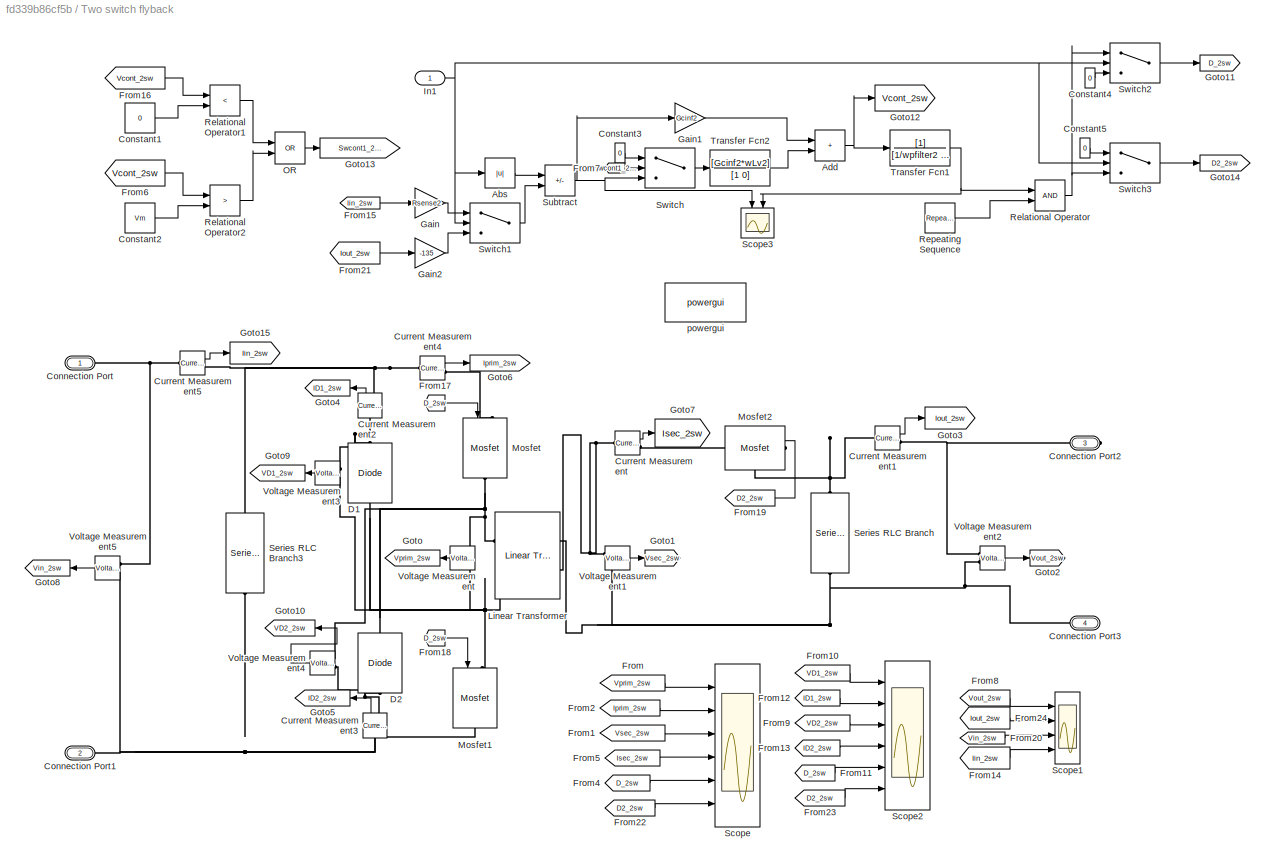
BLOCK [SubSystem] Two switch flyback
  Ports = [1, 0, 0, 0, 0, 2, 2]
  RequestExecContextInheritance = off
BLOCK [Abs] Two switch flyback/Abs
  SaturateOnIntegerOverflow = off
BLOCK [Sum] Two switch flyback/Add
  IconShape = rectangular
  Ports = [2, 1]
BLOCK [PMIOPort] Two switch flyback/Connection Port
  Side = Left
BLOCK [PMIOPort] Two switch flyback/Connection Port1
  Port = 2
  Side = Left
BLOCK [PMIOPort] Two switch flyback/Connection Port2
  NameLocation = top
  Port = 3
  Side = Right
BLOCK [PMIOPort] Two switch flyback/Connection Port3
  NameLocation = top
  Port = 4
  Side = Right
BLOCK [Constant] Two switch flyback/Constant1
  Value = 0
BLOCK [Constant] Two switch flyback/Constant2
  Value = Vm
BLOCK [Constant] Two switch flyback/Constant3
  Value = 0
BLOCK [Constant] Two switch flyback/Constant4
  Value = 0
BLOCK [Constant] Two switch flyback/Constant5
  Value = 0
BLOCK [Reference] Two switch flyback/Current Measurement  REF=spsCurrentMeasurementLib/Current Measurement
  Ports = [0, 1, 0, 0, 0, 1, 1]
  SourceBlock = spsCurrentMeasurementLib/Current Measurement
  SourceProductBaseCode = PS
  SourceType = Current Measurement
  UserDataPersistent = on
BLOCK [Reference] Two switch flyback/Current Measurement1  REF=spsCurrentMeasurementLib/Current Measurement
  Ports = [0, 1, 0, 0, 0, 1, 1]
  SourceBlock = spsCurrentMeasurementLib/Current Measurement
  SourceProductBaseCode = PS
  SourceType = Current Measurement
  UserDataPersistent = on
BLOCK [Reference] Two switch flyback/Current Measurement2  REF=spsCurrentMeasurementLib/Current Measurement
  NameLocation = right
  Ports = [0, 1, 0, 0, 0, 1, 1]
  SourceBlock = spsCurrentMeasurementLib/Current Measurement
  SourceProductBaseCode = PS
  SourceType = Current Measurement
  UserDataPersistent = on
BLOCK [Reference] Two switch flyback/Current Measurement3  REF=spsCurrentMeasurementLib/Current Measurement
  NameLocation = right
  Ports = [0, 1, 0, 0, 0, 1, 1]
  SourceBlock = spsCurrentMeasurementLib/Current Measurement
  SourceProductBaseCode = PS
  SourceType = Current Measurement
  UserDataPersistent = on
BLOCK [Reference] Two switch flyback/Current Measurement4  REF=spsCurrentMeasurementLib/Current Measurement
  Ports = [0, 1, 0, 0, 0, 1, 1]
  SourceBlock = spsCurrentMeasurementLib/Current Measurement
  SourceProductBaseCode = PS
  SourceType = Current Measurement
  UserDataPersistent = on
BLOCK [Reference] Two switch flyback/Current Measurement5  REF=spsCurrentMeasurementLib/Current Measurement
  Ports = [0, 1, 0, 0, 0, 1, 1]
  SourceBlock = spsCurrentMeasurementLib/Current Measurement
  SourceProductBaseCode = PS
  SourceType = Current Measurement
  UserDataPersistent = on
BLOCK [Reference] Two switch flyback/D1  REF=spsDiodeLib/Diode
  NameLocation = right
  Ports = [0, 0, 0, 0, 0, 1, 1]
  SourceBlock = spsDiodeLib/Diode
  SourceProductBaseCode = PS
  SourceType = Diode
BLOCK [Reference] Two switch flyback/D2  REF=spsDiodeLib/Diode
  NameLocation = right
  Ports = [0, 0, 0, 0, 0, 1, 1]
  SourceBlock = spsDiodeLib/Diode
  SourceProductBaseCode = PS
  SourceType = Diode
BLOCK [From] Two switch flyback/From
  GotoTag = Vprim_2sw
  NameLocation = top
BLOCK [From] Two switch flyback/From1
  GotoTag = Vsec_2sw
BLOCK [From] Two switch flyback/From10
  GotoTag = VD1_2sw
  NameLocation = top
BLOCK [From] Two switch flyback/From11
  GotoTag = D_2sw
BLOCK [From] Two switch flyback/From12
  GotoTag = ID1_2sw
  NameLocation = top
BLOCK [From] Two switch flyback/From13
  GotoTag = ID2_2sw
  NameLocation = top
BLOCK [From] Two switch flyback/From14
  GotoTag = Iin_2sw
BLOCK [From] Two switch flyback/From15
  GotoTag = Iin_2sw
BLOCK [From] Two switch flyback/From16
  GotoTag = Vcont_2sw
BLOCK [From] Two switch flyback/From17
  GotoTag = D_2sw
BLOCK [From] Two switch flyback/From18
  GotoTag = D_2sw
BLOCK [From] Two switch flyback/From19
  GotoTag = D2_2sw
BLOCK [From] Two switch flyback/From2
  GotoTag = Iprim_2sw
BLOCK [From] Two switch flyback/From20
  GotoTag = Vin_2sw
  NameLocation = top
BLOCK [From] Two switch flyback/From21
  GotoTag = Iout_2sw
BLOCK [From] Two switch flyback/From22
  GotoTag = D2_2sw
BLOCK [From] Two switch flyback/From23
  GotoTag = D2_2sw
BLOCK [From] Two switch flyback/From24
  GotoTag = Iout_2sw
BLOCK [From] Two switch flyback/From4
  GotoTag = D_2sw
BLOCK [From] Two switch flyback/From5
  GotoTag = Isec_2sw
BLOCK [From] Two switch flyback/From6
  GotoTag = Vcont_2sw
BLOCK [From] Two switch flyback/From7
  GotoTag = Swcont1_2sw
BLOCK [From] Two switch flyback/From8
  GotoTag = Vout_2sw
BLOCK [From] Two switch flyback/From9
  GotoTag = VD2_2sw
  NameLocation = top
BLOCK [Gain] Two switch flyback/Gain
  Gain = Rsense2
BLOCK [Gain] Two switch flyback/Gain1
  Gain = Gcinf2
BLOCK [Gain] Two switch flyback/Gain2
  Gain = -135
BLOCK [Goto] Two switch flyback/Goto
  GotoTag = Vprim_2sw
  NameLocation = top
BLOCK [Goto] Two switch flyback/Goto1
  GotoTag = Vsec_2sw
BLOCK [Goto] Two switch flyback/Goto10
  GotoTag = VD2_2sw
  NameLocation = top
BLOCK [Goto] Two switch flyback/Goto11
  GotoTag = D_2sw
BLOCK [Goto] Two switch flyback/Goto12
  GotoTag = Vcont_2sw
BLOCK [Goto] Two switch flyback/Goto13
  GotoTag = Swcont1_2sw
BLOCK [Goto] Two switch flyback/Goto14
  GotoTag = D2_2sw
BLOCK [Goto] Two switch flyback/Goto15
  GotoTag = Iin_2sw
BLOCK [Goto] Two switch flyback/Goto2
  GotoTag = Vout_2sw
BLOCK [Goto] Two switch flyback/Goto3
  GotoTag = Iout_2sw
BLOCK [Goto] Two switch flyback/Goto4
  GotoTag = ID1_2sw
  NameLocation = top
BLOCK [Goto] Two switch flyback/Goto5
  GotoTag = ID2_2sw
  NameLocation = top
BLOCK [Goto] Two switch flyback/Goto6
  GotoTag = Iprim_2sw
BLOCK [Goto] Two switch flyback/Goto7
  GotoTag = Isec_2sw
BLOCK [Goto] Two switch flyback/Goto8
  GotoTag = Vin_2sw
BLOCK [Goto] Two switch flyback/Goto9
  GotoTag = VD1_2sw
  NameLocation = top
BLOCK [Inport] Two switch flyback/In1
BLOCK [Reference] Two switch flyback/Linear Transformer  REF=spsLinearTransformerLib/Linear Transformer
  Ports = [0, 0, 0, 0, 0, 2, 2]
  SourceBlock = spsLinearTransformerLib/Linear Transformer
  SourceProductBaseCode = PS
  SourceType = Linear Transformer
BLOCK [Reference] Two switch flyback/Mosfet  REF=spsMosfetLib/Mosfet
  NameLocation = left
  Ports = [1, 0, 0, 0, 0, 1, 1]
  SourceBlock = spsMosfetLib/Mosfet
  SourceProductBaseCode = PS
  SourceType = Mosfet
BLOCK [Reference] Two switch flyback/Mosfet1  REF=spsMosfetLib/Mosfet
  NameLocation = left
  Ports = [1, 0, 0, 0, 0, 1, 1]
  SourceBlock = spsMosfetLib/Mosfet
  SourceProductBaseCode = PS
  SourceType = Mosfet
BLOCK [Reference] Two switch flyback/Mosfet2  REF=spsMosfetLib/Mosfet
  Ports = [1, 0, 0, 0, 0, 1, 1]
  SourceBlock = spsMosfetLib/Mosfet
  SourceProductBaseCode = PS
  SourceType = Mosfet
BLOCK [Logic] Two switch flyback/OR
  AllPortsSameDT = off
  IconShape = distinctive
  Operator = OR
  OutDataTypeStr = boolean
  Ports = [2, 1]
BLOCK [RelationalOperator] Two switch flyback/Relational Operator
  InputSameDT = off
  OutDataTypeStr = boolean
  Ports = [2, 1]
  RndMeth = Simplest
BLOCK [RelationalOperator] Two switch flyback/Relational Operator1
  InputSameDT = off
  Operator = <
  OutDataTypeStr = boolean
  Ports = [2, 1]
  RndMeth = Simplest
BLOCK [RelationalOperator] Two switch flyback/Relational Operator2
  InputSameDT = off
  Operator = >
  OutDataTypeStr = boolean
  Ports = [2, 1]
  RndMeth = Simplest
BLOCK [Reference] Two switch flyback/Repeating Sequence  REF=simulink/Sources/Repeating
Sequence
  Ports = [0, 1]
  SourceBlock = simulink/Sources/Repeating\nSequence
  SourceProductBaseCode = SL
  SourceType = Repeating table
BLOCK [Scope] Two switch flyback/Scope
  Floating = off
  NumInputPorts = 6
  Ports = [6]
  ScopeSpecificationString = Simulink.scopes.TimeScopeBlockCfg('CurrentConfiguration', extmgr.ConfigurationSet(extmgr.Configuration('Core','General UI',true),extmgr.Configuration('Core','Source UI',true),extmgr.Configuration('Sources','WiredSimulink',true,'DataLoggingVariableName','ScopeData1'),extmgr.Configuration('Visuals','Time Domain',true,'SerializedDisplays',{struct('MinYLimReal','-3.80072','MaxYLimReal','4.5815','YLabe...<+6491ch>
BLOCK [Scope] Two switch flyback/Scope1
  Floating = off
  NumInputPorts = 4
  Ports = [4]
  ScopeSpecificationString = Simulink.scopes.TimeScopeBlockCfg('CurrentConfiguration', extmgr.ConfigurationSet(extmgr.Configuration('Core','General UI',true),extmgr.Configuration('Core','Source UI',true),extmgr.Configuration('Sources','WiredSimulink',true,'DataLoggingVariableName','ScopeData2'),extmgr.Configuration('Visuals','Time Domain',true,'SerializedDisplays',{struct('MinYLimReal','11.79342','MaxYLimReal','11.85629','YLa...<+3721ch>
BLOCK [Scope] Two switch flyback/Scope2
  Floating = off
  NumInputPorts = 6
  Ports = [6]
  ScopeSpecificationString = Simulink.scopes.TimeScopeBlockCfg('CurrentConfiguration', extmgr.ConfigurationSet(extmgr.Configuration('Core','General UI',true),extmgr.Configuration('Core','Source UI',true),extmgr.Configuration('Sources','WiredSimulink',true,'DataLoggingVariableName','ScopeData3'),extmgr.Configuration('Visuals','Time Domain',true,'SerializedDisplays',{struct('MinYLimReal','-0.05374','MaxYLimReal','4.1248','YLabe...<+6403ch>
BLOCK [Scope] Two switch flyback/Scope3
  Floating = off
  NameLocation = left
  NumInputPorts = 2
  Ports = [2]
  ScopeSpecificationString = Simulink.scopes.TimeScopeBlockCfg('CurrentConfiguration', extmgr.ConfigurationSet(extmgr.Configuration('Core','General UI',true),extmgr.Configuration('Core','Source UI',true),extmgr.Configuration('Sources','WiredSimulink',true,'DataLoggingVariableName','ScopeData4'),extmgr.Configuration('Visuals','Time Domain',true,'SerializedDisplays',{struct('MinYLimReal','-15.1845','MaxYLimReal','16.04441','YLa...<+2207ch>
BLOCK [Reference] Two switch flyback/Series RLC Branch  REF=spsSeriesRLCBranchLib/Series RLC Branch
  NameLocation = left
  Ports = [0, 0, 0, 0, 0, 1, 1]
  SourceBlock = spsSeriesRLCBranchLib/Series RLC Branch
  SourceProductBaseCode = PS
  SourceType = Series RLC Branch
BLOCK [Reference] Two switch flyback/Series RLC Branch3  REF=spsSeriesRLCBranchLib/Series RLC Branch
  NameLocation = left
  Ports = [0, 0, 0, 0, 0, 1, 1]
  SourceBlock = spsSeriesRLCBranchLib/Series RLC Branch
  SourceProductBaseCode = PS
  SourceType = Series RLC Branch
BLOCK [Sum] Two switch flyback/Subtract
  IconShape = rectangular
  Inputs = +-
  Ports = [2, 1]
BLOCK [Switch] Two switch flyback/Switch
  Criteria = u2 > Threshold
  InputSameDT = off
  SaturateOnIntegerOverflow = off
BLOCK [Switch] Two switch flyback/Switch1
  Criteria = u2 > Threshold
  InputSameDT = off
  SaturateOnIntegerOverflow = off
BLOCK [Switch] Two switch flyback/Switch2
  Criteria = u2 > Threshold
  InputSameDT = off
  SaturateOnIntegerOverflow = off
BLOCK [Switch] Two switch flyback/Switch3
  Criteria = u2 > Threshold
  InputSameDT = off
  SaturateOnIntegerOverflow = off
BLOCK [TransferFcn] Two switch flyback/Transfer Fcn1
  Denominator = [1/wpfilter2 1]
BLOCK [TransferFcn] Two switch flyback/Transfer Fcn2
  Denominator = [1 0]
  Numerator = [Gcinf2*wLv2]
BLOCK [Reference] Two switch flyback/Voltage Measurement  REF=spsVoltageMeasurementLib/Voltage Measurement
  Ports = [0, 1, 0, 0, 0, 2]
  SourceBlock = spsVoltageMeasurementLib/Voltage Measurement
  SourceProductBaseCode = PS
  SourceType = Voltage Measurement
  UserDataPersistent = on
BLOCK [Reference] Two switch flyback/Voltage Measurement1  REF=spsVoltageMeasurementLib/Voltage Measurement
  Ports = [0, 1, 0, 0, 0, 2]
  SourceBlock = spsVoltageMeasurementLib/Voltage Measurement
  SourceProductBaseCode = PS
  SourceType = Voltage Measurement
  UserDataPersistent = on
BLOCK [Reference] Two switch flyback/Voltage Measurement2  REF=spsVoltageMeasurementLib/Voltage Measurement
  Ports = [0, 1, 0, 0, 0, 2]
  SourceBlock = spsVoltageMeasurementLib/Voltage Measurement
  SourceProductBaseCode = PS
  SourceType = Voltage Measurement
  UserDataPersistent = on
BLOCK [Reference] Two switch flyback/Voltage Measurement3  REF=spsVoltageMeasurementLib/Voltage Measurement
  Ports = [0, 1, 0, 0, 0, 2]
  SourceBlock = spsVoltageMeasurementLib/Voltage Measurement
  SourceProductBaseCode = PS
  SourceType = Voltage Measurement
  UserDataPersistent = on
BLOCK [Reference] Two switch flyback/Voltage Measurement4  REF=spsVoltageMeasurementLib/Voltage Measurement
  Ports = [0, 1, 0, 0, 0, 2]
  SourceBlock = spsVoltageMeasurementLib/Voltage Measurement
  SourceProductBaseCode = PS
  SourceType = Voltage Measurement
  UserDataPersistent = on
BLOCK [Reference] Two switch flyback/Voltage Measurement5  REF=spsVoltageMeasurementLib/Voltage Measurement
  Ports = [0, 1, 0, 0, 0, 2]
  SourceBlock = spsVoltageMeasurementLib/Voltage Measurement
  SourceProductBaseCode = PS
  SourceType = Voltage Measurement
  UserDataPersistent = on
BLOCK [Reference] Two switch flyback/powergui  REF=spspowerguiLib/powergui
  Ports = []
  Priority = 1
  SourceBlock = spspowerguiLib/powergui
  SourceProductBaseCode = PS
  SourceType = PSB option menu block
BLOCK [Reference] powergui  REF=spspowerguiLib/powergui
  Ports = []
  Priority = 1
  SourceBlock = spspowerguiLib/powergui
  SourceProductBaseCode = PS
  SourceType = PSB option menu block
LINE -0.1A reference (flyback) :1 -> Cell 3 flyback converter:1
LINE 0.1A reference (2 switch flyback):1 -> Two switch flyback:1
LINE 0.1A reference (flyback):1 -> Cell1 flyback converter:1
LINE 0.2A reference (flyback):1 -> Cell2 flyback converter:1
LINE Cell 3 flyback converter/Abs:1 -> Cell 3 flyback converter/Subtract:1
NET Cell 3 flyback converter/Add:1 -> Cell 3 flyback converter/Goto6:1, Cell 3 flyback converter/Transfer Fcn1:1
LINE Cell 3 flyback converter/Constant1:1 -> Cell 3 flyback converter/Relational Operator1:2
LINE Cell 3 flyback converter/Constant2:1 -> Cell 3 flyback converter/Relational Operator2:2
LINE Cell 3 flyback converter/Constant3:1 -> Cell 3 flyback converter/Switch:1
LINE Cell 3 flyback converter/Constant4:1 -> Cell 3 flyback converter/Switch2:3
LINE Cell 3 flyback converter/Constant5:1 -> Cell 3 flyback converter/Switch3:1
LINE Cell 3 flyback converter/Current Measurement1:1 -> Cell 3 flyback converter/Goto5:1
LINE Cell 3 flyback converter/Current Measurement2:1 -> Cell 3 flyback converter/Goto10:1
LINE Cell 3 flyback converter/Current Measurement3:1 -> Cell 3 flyback converter/Goto11:1
LINE Cell 3 flyback converter/Current Measurement:1 -> Cell 3 flyback converter/Goto4:1
LINE Cell 3 flyback converter/From10:1 -> Cell 3 flyback converter/Relational Operator2:1
LINE Cell 3 flyback converter/From11:1 -> Cell 3 flyback converter/Switch:2
LINE Cell 3 flyback converter/From12:1 -> Cell 3 flyback converter/Scope:6
LINE Cell 3 flyback converter/From13:1 -> Cell 3 flyback converter/Scope1:4
LINE Cell 3 flyback converter/From14:1 -> Cell 3 flyback converter/Scope1:3
LINE Cell 3 flyback converter/From15:1 -> Cell 3 flyback converter/Gain2:1
LINE Cell 3 flyback converter/From16:1 -> Cell 3 flyback converter/Scope1:2
LINE Cell 3 flyback converter/From1:1 -> Cell 3 flyback converter/Scope:5
LINE Cell 3 flyback converter/From2:1 -> Cell 3 flyback converter/Scope:3
LINE Cell 3 flyback converter/From3:1 -> Cell 3 flyback converter/Scope:2
LINE Cell 3 flyback converter/From4:1 -> Cell 3 flyback converter/Scope:4
LINE Cell 3 flyback converter/From5:1 -> Cell 3 flyback converter/Scope1:1
LINE Cell 3 flyback converter/From6:1 -> Cell 3 flyback converter/Mosfet1:1
LINE Cell 3 flyback converter/From7:1 -> Cell 3 flyback converter/Gain:1
LINE Cell 3 flyback converter/From8:1 -> Cell 3 flyback converter/Mosfet:1
LINE Cell 3 flyback converter/From9:1 -> Cell 3 flyback converter/Relational Operator1:1
LINE Cell 3 flyback converter/From:1 -> Cell 3 flyback converter/Scope:1
LINE Cell 3 flyback converter/Gain1:1 -> Cell 3 flyback converter/Add:1
LINE Cell 3 flyback converter/Gain2:1 -> Cell 3 flyback converter/Switch1:3
LINE Cell 3 flyback converter/Gain:1 -> Cell 3 flyback converter/Switch1:1
NET Cell 3 flyback converter/In1:1 -> Cell 3 flyback converter/Abs:1, Cell 3 flyback converter/Switch1:2, Cell 3 flyback converter/Switch2:2, Cell 3 flyback converter/Switch3:2
LINE Cell 3 flyback converter/OR:1 -> Cell 3 flyback converter/Goto7:1
LINE Cell 3 flyback converter/Relational Operator1:1 -> Cell 3 flyback converter/OR:1
LINE Cell 3 flyback converter/Relational Operator2:1 -> Cell 3 flyback converter/OR:2
NET Cell 3 flyback converter/Relational Operator:1 -> Cell 3 flyback converter/Switch2:1, Cell 3 flyback converter/Switch3:3
LINE Cell 3 flyback converter/Repeating Sequence:1 -> Cell 3 flyback converter/Relational Operator:2
NET Cell 3 flyback converter/Subtract:1 -> Cell 3 flyback converter/Gain1:1, Cell 3 flyback converter/Scope2:1, Cell 3 flyback converter/Switch:3
LINE Cell 3 flyback converter/Switch1:1 -> Cell 3 flyback converter/Subtract:2
LINE Cell 3 flyback converter/Switch2:1 -> Cell 3 flyback converter/Goto1:1
LINE Cell 3 flyback converter/Switch3:1 -> Cell 3 flyback converter/Goto8:1
LINE Cell 3 flyback converter/Switch:1 -> Cell 3 flyback converter/Transfer Fcn2:1
NET Cell 3 flyback converter/Transfer Fcn1:1 -> Cell 3 flyback converter/Relational Operator:1, Cell 3 flyback converter/Scope2:2
LINE Cell 3 flyback converter/Transfer Fcn2:1 -> Cell 3 flyback converter/Add:2
LINE Cell 3 flyback converter/Voltage Measurement1:1 -> Cell 3 flyback converter/Goto2:1
LINE Cell 3 flyback converter/Voltage Measurement2:1 -> Cell 3 flyback converter/Goto3:1
LINE Cell 3 flyback converter/Voltage Measurement3:1 -> Cell 3 flyback converter/Goto9:1
LINE Cell 3 flyback converter/Voltage Measurement:1 -> Cell 3 flyback converter/Goto:1
LINE Cell1 flyback converter/Abs:1 -> Cell1 flyback converter/Subtract:1
NET Cell1 flyback converter/Add:1 -> Cell1 flyback converter/Goto6:1, Cell1 flyback converter/Transfer Fcn1:1
LINE Cell1 flyback converter/Constant1:1 -> Cell1 flyback converter/Relational Operator1:2
LINE Cell1 flyback converter/Constant2:1 -> Cell1 flyback converter/Relational Operator2:2
LINE Cell1 flyback converter/Constant3:1 -> Cell1 flyback converter/Switch:1
LINE Cell1 flyback converter/Constant4:1 -> Cell1 flyback converter/Switch2:3
LINE Cell1 flyback converter/Constant5:1 -> Cell1 flyback converter/Switch3:1
LINE Cell1 flyback converter/Current Measurement1:1 -> Cell1 flyback converter/Goto5:1
LINE Cell1 flyback converter/Current Measurement2:1 -> Cell1 flyback converter/Goto10:1
LINE Cell1 flyback converter/Current Measurement3:1 -> Cell1 flyback converter/Goto11:1
LINE Cell1 flyback converter/Current Measurement:1 -> Cell1 flyback converter/Goto4:1
LINE Cell1 flyback converter/From10:1 -> Cell1 flyback converter/Relational Operator2:1
LINE Cell1 flyback converter/From11:1 -> Cell1 flyback converter/Switch:2
LINE Cell1 flyback converter/From12:1 -> Cell1 flyback converter/Scope:6
LINE Cell1 flyback converter/From13:1 -> Cell1 flyback converter/Scope1:4
LINE Cell1 flyback converter/From14:1 -> Cell1 flyback converter/Scope1:3
LINE Cell1 flyback converter/From15:1 -> Cell1 flyback converter/Gain2:1
LINE Cell1 flyback converter/From16:1 -> Cell1 flyback converter/Scope1:2
LINE Cell1 flyback converter/From1:1 -> Cell1 flyback converter/Scope:5
LINE Cell1 flyback converter/From2:1 -> Cell1 flyback converter/Scope:3
LINE Cell1 flyback converter/From3:1 -> Cell1 flyback converter/Scope:2
LINE Cell1 flyback converter/From4:1 -> Cell1 flyback converter/Scope:4
LINE Cell1 flyback converter/From5:1 -> Cell1 flyback converter/Scope1:1
LINE Cell1 flyback converter/From6:1 -> Cell1 flyback converter/Mosfet1:1
LINE Cell1 flyback converter/From7:1 -> Cell1 flyback converter/Gain:1
LINE Cell1 flyback converter/From8:1 -> Cell1 flyback converter/Mosfet:1
LINE Cell1 flyback converter/From9:1 -> Cell1 flyback converter/Relational Operator1:1
LINE Cell1 flyback converter/From:1 -> Cell1 flyback converter/Scope:1
LINE Cell1 flyback converter/Gain1:1 -> Cell1 flyback converter/Add:1
LINE Cell1 flyback converter/Gain2:1 -> Cell1 flyback converter/Switch1:3
LINE Cell1 flyback converter/Gain:1 -> Cell1 flyback converter/Switch1:1
NET Cell1 flyback converter/In1:1 -> Cell1 flyback converter/Abs:1, Cell1 flyback converter/Switch1:2, Cell1 flyback converter/Switch2:2, Cell1 flyback converter/Switch3:2
LINE Cell1 flyback converter/OR:1 -> Cell1 flyback converter/Goto7:1
LINE Cell1 flyback converter/Relational Operator1:1 -> Cell1 flyback converter/OR:1
LINE Cell1 flyback converter/Relational Operator2:1 -> Cell1 flyback converter/OR:2
NET Cell1 flyback converter/Relational Operator:1 -> Cell1 flyback converter/Switch2:1, Cell1 flyback converter/Switch3:3
LINE Cell1 flyback converter/Repeating Sequence:1 -> Cell1 flyback converter/Relational Operator:2
NET Cell1 flyback converter/Subtract:1 -> Cell1 flyback converter/Gain1:1, Cell1 flyback converter/Scope2:1, Cell1 flyback converter/Switch:3
LINE Cell1 flyback converter/Switch1:1 -> Cell1 flyback converter/Subtract:2
LINE Cell1 flyback converter/Switch2:1 -> Cell1 flyback converter/Goto1:1
LINE Cell1 flyback converter/Switch3:1 -> Cell1 flyback converter/Goto8:1
LINE Cell1 flyback converter/Switch:1 -> Cell1 flyback converter/Transfer Fcn2:1
NET Cell1 flyback converter/Transfer Fcn1:1 -> Cell1 flyback converter/Relational Operator:1, Cell1 flyback converter/Scope2:2
LINE Cell1 flyback converter/Transfer Fcn2:1 -> Cell1 flyback converter/Add:2
LINE Cell1 flyback converter/Voltage Measurement1:1 -> Cell1 flyback converter/Goto2:1
LINE Cell1 flyback converter/Voltage Measurement2:1 -> Cell1 flyback converter/Goto3:1
LINE Cell1 flyback converter/Voltage Measurement3:1 -> Cell1 flyback converter/Goto9:1
LINE Cell1 flyback converter/Voltage Measurement:1 -> Cell1 flyback converter/Goto:1
LINE Cell2 flyback converter/Abs:1 -> Cell2 flyback converter/Subtract:1
NET Cell2 flyback converter/Add:1 -> Cell2 flyback converter/Goto6:1, Cell2 flyback converter/Transfer Fcn1:1
LINE Cell2 flyback converter/Constant1:1 -> Cell2 flyback converter/Relational Operator1:2
LINE Cell2 flyback converter/Constant2:1 -> Cell2 flyback converter/Relational Operator2:2
LINE Cell2 flyback converter/Constant3:1 -> Cell2 flyback converter/Switch:1
LINE Cell2 flyback converter/Constant4:1 -> Cell2 flyback converter/Switch2:3
LINE Cell2 flyback converter/Constant5:1 -> Cell2 flyback converter/Switch3:1
LINE Cell2 flyback converter/Current Measurement1:1 -> Cell2 flyback converter/Goto5:1
LINE Cell2 flyback converter/Current Measurement2:1 -> Cell2 flyback converter/Goto10:1
LINE Cell2 flyback converter/Current Measurement3:1 -> Cell2 flyback converter/Goto11:1
LINE Cell2 flyback converter/Current Measurement:1 -> Cell2 flyback converter/Goto4:1
LINE Cell2 flyback converter/From10:1 -> Cell2 flyback converter/Relational Operator2:1
LINE Cell2 flyback converter/From11:1 -> Cell2 flyback converter/Switch:2
LINE Cell2 flyback converter/From12:1 -> Cell2 flyback converter/Scope:6
LINE Cell2 flyback converter/From13:1 -> Cell2 flyback converter/Scope1:4
LINE Cell2 flyback converter/From14:1 -> Cell2 flyback converter/Scope1:3
LINE Cell2 flyback converter/From15:1 -> Cell2 flyback converter/Gain2:1
LINE Cell2 flyback converter/From16:1 -> Cell2 flyback converter/Scope1:2
LINE Cell2 flyback converter/From1:1 -> Cell2 flyback converter/Scope:5
LINE Cell2 flyback converter/From2:1 -> Cell2 flyback converter/Scope:3
LINE Cell2 flyback converter/From3:1 -> Cell2 flyback converter/Scope:2
LINE Cell2 flyback converter/From4:1 -> Cell2 flyback converter/Scope:4
LINE Cell2 flyback converter/From5:1 -> Cell2 flyback converter/Scope1:1
LINE Cell2 flyback converter/From6:1 -> Cell2 flyback converter/Mosfet1:1
LINE Cell2 flyback converter/From7:1 -> Cell2 flyback converter/Gain:1
LINE Cell2 flyback converter/From8:1 -> Cell2 flyback converter/Mosfet:1
LINE Cell2 flyback converter/From9:1 -> Cell2 flyback converter/Relational Operator1:1
LINE Cell2 flyback converter/From:1 -> Cell2 flyback converter/Scope:1
LINE Cell2 flyback converter/Gain1:1 -> Cell2 flyback converter/Add:1
LINE Cell2 flyback converter/Gain2:1 -> Cell2 flyback converter/Switch1:3
LINE Cell2 flyback converter/Gain:1 -> Cell2 flyback converter/Switch1:1
NET Cell2 flyback converter/In1:1 -> Cell2 flyback converter/Abs:1, Cell2 flyback converter/Switch1:2, Cell2 flyback converter/Switch2:2, Cell2 flyback converter/Switch3:2
LINE Cell2 flyback converter/OR:1 -> Cell2 flyback converter/Goto7:1
LINE Cell2 flyback converter/Relational Operator1:1 -> Cell2 flyback converter/OR:1
LINE Cell2 flyback converter/Relational Operator2:1 -> Cell2 flyback converter/OR:2
NET Cell2 flyback converter/Relational Operator:1 -> Cell2 flyback converter/Switch2:1, Cell2 flyback converter/Switch3:3
LINE Cell2 flyback converter/Repeating Sequence:1 -> Cell2 flyback converter/Relational Operator:2
NET Cell2 flyback converter/Subtract:1 -> Cell2 flyback converter/Gain1:1, Cell2 flyback converter/Scope2:1, Cell2 flyback converter/Switch:3
LINE Cell2 flyback converter/Switch1:1 -> Cell2 flyback converter/Subtract:2
LINE Cell2 flyback converter/Switch2:1 -> Cell2 flyback converter/Goto1:1
LINE Cell2 flyback converter/Switch3:1 -> Cell2 flyback converter/Goto8:1
LINE Cell2 flyback converter/Switch:1 -> Cell2 flyback converter/Transfer Fcn2:1
NET Cell2 flyback converter/Transfer Fcn1:1 -> Cell2 flyback converter/Relational Operator:1, Cell2 flyback converter/Scope2:2
LINE Cell2 flyback converter/Transfer Fcn2:1 -> Cell2 flyback converter/Add:2
LINE Cell2 flyback converter/Voltage Measurement1:1 -> Cell2 flyback converter/Goto2:1
LINE Cell2 flyback converter/Voltage Measurement2:1 -> Cell2 flyback converter/Goto3:1
LINE Cell2 flyback converter/Voltage Measurement3:1 -> Cell2 flyback converter/Goto9:1
LINE Cell2 flyback converter/Voltage Measurement:1 -> Cell2 flyback converter/Goto:1
LINE Constant3:1 -> Controlled Current Source:1
LINE Current Measurement1:1 -> Goto2:1
LINE Current Measurement2:1 -> Goto:1
LINE Current Measurement3:1 -> Goto3:1
LINE Current Measurement4:1 -> Goto4:1
LINE Current Measurement5:1 -> Goto5:1
LINE Current Measurement6:1 -> Goto6:1
LINE Current Measurement:1 -> Goto1:1
LINE From1:1 -> Scope:3
LINE From2:1 -> Scope:4
LINE From3:1 -> Scope:5
LINE From4:1 -> Scope:1
LINE From5:1 -> Scope1:1
LINE From6:1 -> Scope1:2
LINE From7:1 -> Scope1:3
LINE From:1 -> Scope:2
LINE Two switch flyback/Abs:1 -> Two switch flyback/Subtract:1
NET Two switch flyback/Add:1 -> Two switch flyback/Goto12:1, Two switch flyback/Transfer Fcn1:1
LINE Two switch flyback/Constant1:1 -> Two switch flyback/Relational Operator1:2
LINE Two switch flyback/Constant2:1 -> Two switch flyback/Relational Operator2:2
LINE Two switch flyback/Constant3:1 -> Two switch flyback/Switch:1
LINE Two switch flyback/Constant4:1 -> Two switch flyback/Switch2:3
LINE Two switch flyback/Constant5:1 -> Two switch flyback/Switch3:1
LINE Two switch flyback/Current Measurement1:1 -> Two switch flyback/Goto3:1
LINE Two switch flyback/Current Measurement2:1 -> Two switch flyback/Goto4:1
LINE Two switch flyback/Current Measurement3:1 -> Two switch flyback/Goto5:1
LINE Two switch flyback/Current Measurement4:1 -> Two switch flyback/Goto6:1
LINE Two switch flyback/Current Measurement5:1 -> Two switch flyback/Goto15:1
LINE Two switch flyback/Current Measurement:1 -> Two switch flyback/Goto7:1
LINE Two switch flyback/From10:1 -> Two switch flyback/Scope2:1
LINE Two switch flyback/From11:1 -> Two switch flyback/Scope2:5
LINE Two switch flyback/From12:1 -> Two switch flyback/Scope2:2
LINE Two switch flyback/From13:1 -> Two switch flyback/Scope2:4
LINE Two switch flyback/From14:1 -> Two switch flyback/Scope1:4
LINE Two switch flyback/From15:1 -> Two switch flyback/Gain:1
LINE Two switch flyback/From16:1 -> Two switch flyback/Relational Operator1:1
LINE Two switch flyback/From17:1 -> Two switch flyback/Mosfet:1
LINE Two switch flyback/From18:1 -> Two switch flyback/Mosfet1:1
LINE Two switch flyback/From19:1 -> Two switch flyback/Mosfet2:1
LINE Two switch flyback/From1:1 -> Two switch flyback/Scope:3
LINE Two switch flyback/From20:1 -> Two switch flyback/Scope1:3
LINE Two switch flyback/From21:1 -> Two switch flyback/Gain2:1
LINE Two switch flyback/From22:1 -> Two switch flyback/Scope:6
LINE Two switch flyback/From23:1 -> Two switch flyback/Scope2:6
LINE Two switch flyback/From24:1 -> Two switch flyback/Scope1:2
LINE Two switch flyback/From2:1 -> Two switch flyback/Scope:2
LINE Two switch flyback/From4:1 -> Two switch flyback/Scope:5
LINE Two switch flyback/From5:1 -> Two switch flyback/Scope:4
LINE Two switch flyback/From6:1 -> Two switch flyback/Relational Operator2:1
LINE Two switch flyback/From7:1 -> Two switch flyback/Switch:2
LINE Two switch flyback/From8:1 -> Two switch flyback/Scope1:1
LINE Two switch flyback/From9:1 -> Two switch flyback/Scope2:3
LINE Two switch flyback/From:1 -> Two switch flyback/Scope:1
LINE Two switch flyback/Gain1:1 -> Two switch flyback/Add:1
LINE Two switch flyback/Gain2:1 -> Two switch flyback/Switch1:3
LINE Two switch flyback/Gain:1 -> Two switch flyback/Switch1:1
NET Two switch flyback/In1:1 -> Two switch flyback/Abs:1, Two switch flyback/Switch1:2, Two switch flyback/Switch2:2, Two switch flyback/Switch3:2
LINE Two switch flyback/OR:1 -> Two switch flyback/Goto13:1
LINE Two switch flyback/Relational Operator1:1 -> Two switch flyback/OR:1
LINE Two switch flyback/Relational Operator2:1 -> Two switch flyback/OR:2
NET Two switch flyback/Relational Operator:1 -> Two switch flyback/Switch2:1, Two switch flyback/Switch3:3
LINE Two switch flyback/Repeating Sequence:1 -> Two switch flyback/Relational Operator:2
NET Two switch flyback/Subtract:1 -> Two switch flyback/Gain1:1, Two switch flyback/Scope3:1, Two switch flyback/Switch:3
LINE Two switch flyback/Switch1:1 -> Two switch flyback/Subtract:2
LINE Two switch flyback/Switch2:1 -> Two switch flyback/Goto11:1
LINE Two switch flyback/Switch3:1 -> Two switch flyback/Goto14:1
LINE Two switch flyback/Switch:1 -> Two switch flyback/Transfer Fcn2:1
NET Two switch flyback/Transfer Fcn1:1 -> Two switch flyback/Relational Operator:1, Two switch flyback/Scope3:2
LINE Two switch flyback/Transfer Fcn2:1 -> Two switch flyback/Add:2
LINE Two switch flyback/Voltage Measurement1:1 -> Two switch flyback/Goto1:1
LINE Two switch flyback/Voltage Measurement2:1 -> Two switch flyback/Goto2:1
LINE Two switch flyback/Voltage Measurement3:1 -> Two switch flyback/Goto9:1
LINE Two switch flyback/Voltage Measurement4:1 -> Two switch flyback/Goto10:1
LINE Two switch flyback/Voltage Measurement5:1 -> Two switch flyback/Goto8:1
LINE Two switch flyback/Voltage Measurement:1 -> Two switch flyback/Goto:1
PNET net1: Cell 3 flyback converter/Connection Port1:RConn1 -- Cell 3 flyback converter/Linear Transformer:RConn1 -- Cell 3 flyback converter/Series RLC Branch:RConn1 -- Cell 3 flyback converter/Voltage Measurement1:LConn1 -- Cell 3 flyback converter/Voltage Measurement2:LConn2
PNET net2: Cell 3 flyback converter/Connection Port2:RConn1 -- Cell 3 flyback converter/Current Measurement2:LConn1 -- Cell 3 flyback converter/Voltage Measurement3:LConn1
PNET net3: Cell 3 flyback converter/Connection Port3:RConn1 -- Cell 3 flyback converter/Mosfet:RConn1 -- Cell 3 flyback converter/Series RLC Branch3:RConn1 -- Cell 3 flyback converter/Voltage Measurement3:LConn2
PNET net4: Cell 3 flyback converter/Connection Port:RConn1 -- Cell 3 flyback converter/Current Measurement3:RConn1 -- Cell 3 flyback converter/Voltage Measurement2:LConn1
PNET net5: Cell 3 flyback converter/Current Measurement1:LConn1 -- Cell 3 flyback converter/Linear Transformer:RConn2 -- Cell 3 flyback converter/Voltage Measurement1:LConn2
PLINE Cell 3 flyback converter/Current Measurement1:RConn1 -- Cell 3 flyback converter/Mosfet1:RConn1
PNET net6: Cell 3 flyback converter/Current Measurement2:RConn1 -- Cell 3 flyback converter/Current Measurement:LConn1 -- Cell 3 flyback converter/Series RLC Branch3:LConn1
PNET net7: Cell 3 flyback converter/Current Measurement3:LConn1 -- Cell 3 flyback converter/Mosfet1:LConn1 -- Cell 3 flyback converter/Series RLC Branch:LConn1
PNET net8: Cell 3 flyback converter/Current Measurement:RConn1 -- Cell 3 flyback converter/Linear Transformer:LConn1 -- Cell 3 flyback converter/Voltage Measurement:LConn1
PNET net9: Cell 3 flyback converter/Linear Transformer:LConn2 -- Cell 3 flyback converter/Mosfet:LConn1 -- Cell 3 flyback converter/Voltage Measurement:LConn2
PNET net10: Cell 3 flyback converter:LConn1 -- Cell2 flyback converter:LConn2 -- Cell2:LConn1 -- Current Measurement3:LConn1
PNET net11: Cell 3 flyback converter:LConn2 -- Cell3:LConn1 -- Controlled Current Source:LConn1 -- Two switch flyback:RConn2
PNET net12: Cell 3 flyback converter:RConn1 -- Cell1 flyback converter:RConn1 -- Cell2 flyback converter:RConn1 -- Current Measurement4:LConn1
PNET net13: Cell 3 flyback converter:RConn2 -- Cell1 flyback converter:RConn2 -- Cell2 flyback converter:RConn2 -- Output Cell:LConn1 -- Two switch flyback:LConn2
PNET net14: Cell1 flyback converter/Connection Port1:RConn1 -- Cell1 flyback converter/Linear Transformer:RConn1 -- Cell1 flyback converter/Series RLC Branch:RConn1 -- Cell1 flyback converter/Voltage Measurement1:LConn1 -- Cell1 flyback converter/Voltage Measurement2:LConn2
PNET net15: Cell1 flyback converter/Connection Port2:RConn1 -- Cell1 flyback converter/Current Measurement2:LConn1 -- Cell1 flyback converter/Voltage Measurement3:LConn1
PNET net16: Cell1 flyback converter/Connection Port3:RConn1 -- Cell1 flyback converter/Mosfet:RConn1 -- Cell1 flyback converter/Series RLC Branch3:RConn1 -- Cell1 flyback converter/Voltage Measurement3:LConn2
PNET net17: Cell1 flyback converter/Connection Port:RConn1 -- Cell1 flyback converter/Current Measurement3:RConn1 -- Cell1 flyback converter/Voltage Measurement2:LConn1
PNET net18: Cell1 flyback converter/Current Measurement1:LConn1 -- Cell1 flyback converter/Linear Transformer:RConn2 -- Cell1 flyback converter/Voltage Measurement1:LConn2
PLINE Cell1 flyback converter/Current Measurement1:RConn1 -- Cell1 flyback converter/Mosfet1:RConn1
PNET net19: Cell1 flyback converter/Current Measurement2:RConn1 -- Cell1 flyback converter/Current Measurement:LConn1 -- Cell1 flyback converter/Series RLC Branch3:LConn1
PNET net20: Cell1 flyback converter/Current Measurement3:LConn1 -- Cell1 flyback converter/Mosfet1:LConn1 -- Cell1 flyback converter/Series RLC Branch:LConn1
PNET net21: Cell1 flyback converter/Current Measurement:RConn1 -- Cell1 flyback converter/Linear Transformer:LConn1 -- Cell1 flyback converter/Voltage Measurement:LConn1
PNET net22: Cell1 flyback converter/Linear Transformer:LConn2 -- Cell1 flyback converter/Mosfet:LConn1 -- Cell1 flyback converter/Voltage Measurement:LConn2
PNET net23: Cell1 flyback converter:LConn1 -- Current Measurement2:RConn1 -- Current Measurement:LConn1 -- Two switch flyback:RConn1
PNET net24: Cell1 flyback converter:LConn2 -- Cell1:LConn1 -- Cell2 flyback converter:LConn1 -- Current Measurement1:LConn1
PLINE Cell1:RConn1 -- Series RLC Branch3:LConn1
PNET net25: Cell2 flyback converter/Connection Port1:RConn1 -- Cell2 flyback converter/Linear Transformer:RConn1 -- Cell2 flyback converter/Series RLC Branch:RConn1 -- Cell2 flyback converter/Voltage Measurement1:LConn1 -- Cell2 flyback converter/Voltage Measurement2:LConn2
PNET net26: Cell2 flyback converter/Connection Port2:RConn1 -- Cell2 flyback converter/Current Measurement2:LConn1 -- Cell2 flyback converter/Voltage Measurement3:LConn1
PNET net27: Cell2 flyback converter/Connection Port3:RConn1 -- Cell2 flyback converter/Mosfet:RConn1 -- Cell2 flyback converter/Series RLC Branch3:RConn1 -- Cell2 flyback converter/Voltage Measurement3:LConn2
PNET net28: Cell2 flyback converter/Connection Port:RConn1 -- Cell2 flyback converter/Current Measurement3:RConn1 -- Cell2 flyback converter/Voltage Measurement2:LConn1
PNET net29: Cell2 flyback converter/Current Measurement1:LConn1 -- Cell2 flyback converter/Linear Transformer:RConn2 -- Cell2 flyback converter/Voltage Measurement1:LConn2
PLINE Cell2 flyback converter/Current Measurement1:RConn1 -- Cell2 flyback converter/Mosfet1:RConn1
PNET net30: Cell2 flyback converter/Current Measurement2:RConn1 -- Cell2 flyback converter/Current Measurement:LConn1 -- Cell2 flyback converter/Series RLC Branch3:LConn1
PNET net31: Cell2 flyback converter/Current Measurement3:LConn1 -- Cell2 flyback converter/Mosfet1:LConn1 -- Cell2 flyback converter/Series RLC Branch:LConn1
PNET net32: Cell2 flyback converter/Current Measurement:RConn1 -- Cell2 flyback converter/Linear Transformer:LConn1 -- Cell2 flyback converter/Voltage Measurement:LConn1
PNET net33: Cell2 flyback converter/Linear Transformer:LConn2 -- Cell2 flyback converter/Mosfet:LConn1 -- Cell2 flyback converter/Voltage Measurement:LConn2
PLINE Cell2:RConn1 -- Series RLC Branch2:LConn1
PLINE Cell3:RConn1 -- Series RLC Branch:LConn1
PLINE Controlled Current Source:RConn1 -- Current Measurement2:LConn1
PLINE Current Measurement1:RConn1 -- Series RLC Branch2:RConn1
PLINE Current Measurement3:RConn1 -- Series RLC Branch:RConn1
PNET net34: Current Measurement4:RConn1 -- Current Measurement5:LConn1 -- Current Measurement6:LConn1
PLINE Current Measurement5:RConn1 -- Series RLC Branch1:LConn1
PLINE Current Measurement6:RConn1 -- Two switch flyback:LConn1
PLINE Current Measurement:RConn1 -- Series RLC Branch3:RConn1
PLINE Output Cell:RConn1 -- Series RLC Branch1:RConn1
PNET net35: Two switch flyback/Connection Port1:RConn1 -- Two switch flyback/Current Measurement3:LConn1 -- Two switch flyback/Mosfet1:RConn1 -- Two switch flyback/Series RLC Branch3:RConn1 -- Two switch flyback/Voltage Measurement5:LConn2
PNET net36: Two switch flyback/Connection Port2:RConn1 -- Two switch flyback/Current Measurement1:RConn1 -- Two switch flyback/Voltage Measurement2:LConn1
PNET net37: Two switch flyback/Connection Port3:RConn1 -- Two switch flyback/Linear Transformer:RConn1 -- Two switch flyback/Series RLC Branch:RConn1 -- Two switch flyback/Voltage Measurement1:LConn2 -- Two switch flyback/Voltage Measurement2:LConn2
PNET net38: Two switch flyback/Connection Port:RConn1 -- Two switch flyback/Current Measurement5:LConn1 -- Two switch flyback/Voltage Measurement5:LConn1
PNET net39: Two switch flyback/Current Measurement1:LConn1 -- Two switch flyback/Mosfet2:LConn1 -- Two switch flyback/Series RLC Branch:LConn1
PNET net40: Two switch flyback/Current Measurement2:LConn1 -- Two switch flyback/D1:RConn1 -- Two switch flyback/Voltage Measurement3:LConn1
PNET net41: Two switch flyback/Current Measurement2:RConn1 -- Two switch flyback/Current Measurement4:LConn1 -- Two switch flyback/Current Measurement5:RConn1 -- Two switch flyback/Series RLC Branch3:LConn1
PNET net42: Two switch flyback/Current Measurement3:RConn1 -- Two switch flyback/D2:LConn1 -- Two switch flyback/Voltage Measurement4:LConn2
PLINE Two switch flyback/Current Measurement4:RConn1 -- Two switch flyback/Mosfet:LConn1
PNET net43: Two switch flyback/Current Measurement:LConn1 -- Two switch flyback/Linear Transformer:RConn2 -- Two switch flyback/Voltage Measurement1:LConn1
PLINE Two switch flyback/Current Measurement:RConn1 -- Two switch flyback/Mosfet2:RConn1
PNET net44: Two switch flyback/D1:LConn1 -- Two switch flyback/Linear Transformer:LConn2 -- Two switch flyback/Mosfet1:LConn1 -- Two switch flyback/Voltage Measurement3:LConn2 -- Two switch flyback/Voltage Measurement:LConn2
PNET net45: Two switch flyback/D2:RConn1 -- Two switch flyback/Linear Transformer:LConn1 -- Two switch flyback/Mosfet:RConn1 -- Two switch flyback/Voltage Measurement4:LConn1 -- Two switch flyback/Voltage Measurement:LConn1
note: NET lines group one-source signal fan-out (src -> all destinations, sorted); 1:1 wires keep LINE; PNET lines group multi-terminal physical nets as a canonical sorted terminal list (undirected conserving connections); 2-terminal nets keep the pairwise PLINE form
